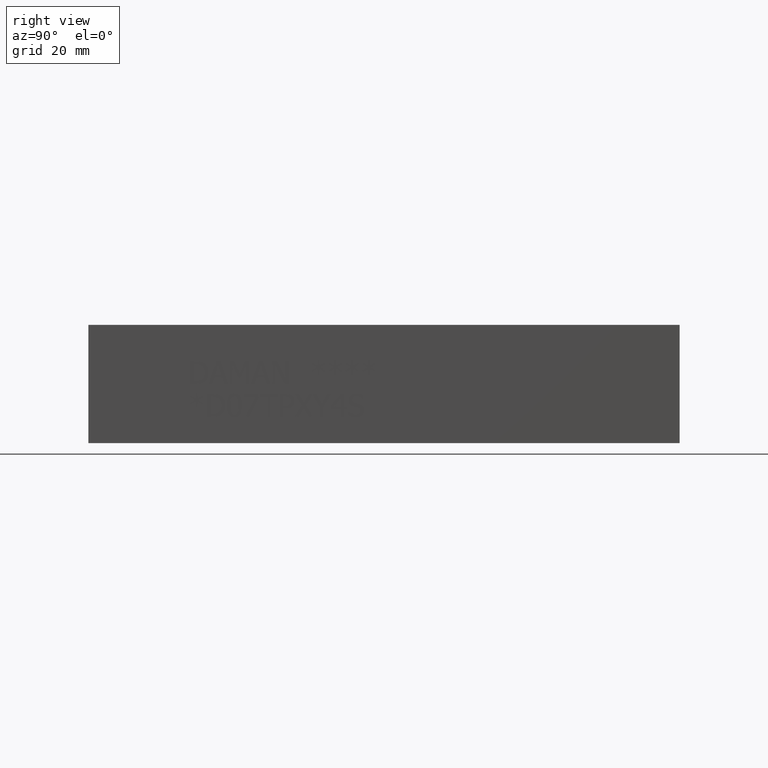
[diagram: clean part render]
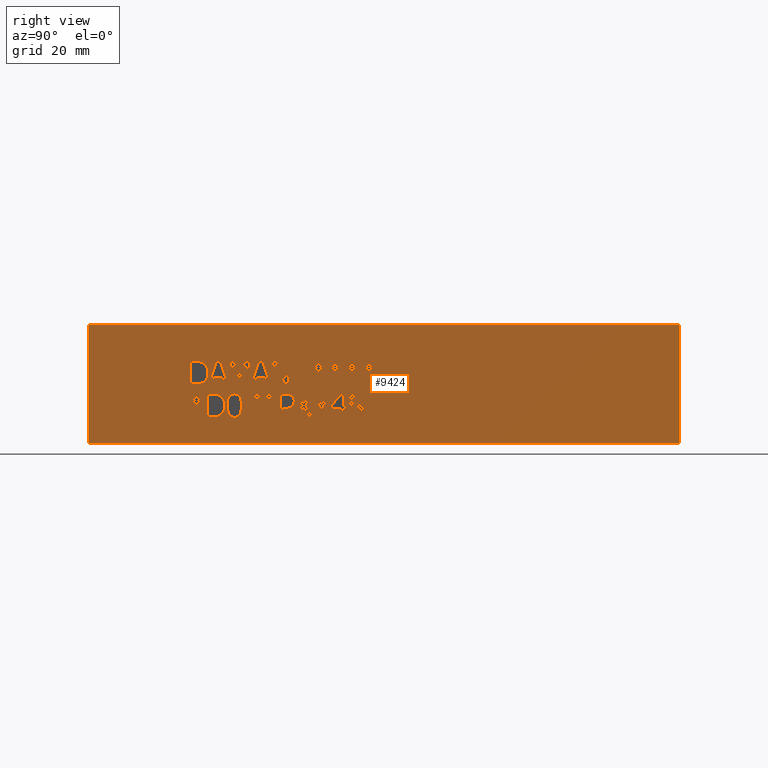
[diagram: same view with one face highlighted and labeled with its STEP entity id]
A machine part, right view. The second image highlights one B-rep face of the part: STEP entity #9424.
In plain terms, the highlighted planar face has unit normal (1, 0, 0).
Its self-contained STEP definition (entity closure, byte-faithful):
#264=FACE_BOUND('',#1379,.T.);
#265=FACE_BOUND('',#1380,.T.);
#266=FACE_BOUND('',#1381,.T.);
#267=FACE_BOUND('',#1382,.T.);
#268=FACE_BOUND('',#1383,.T.);
#269=FACE_BOUND('',#1384,.T.);
#270=FACE_BOUND('',#1385,.T.);
#271=FACE_BOUND('',#1386,.T.);
#272=FACE_BOUND('',#1387,.T.);
#273=FACE_BOUND('',#1388,.T.);
#274=FACE_BOUND('',#1389,.T.);
#275=FACE_BOUND('',#1390,.T.);
#276=FACE_BOUND('',#1391,.T.);
#277=FACE_BOUND('',#1392,.T.);
#278=FACE_BOUND('',#1393,.T.);
#279=FACE_BOUND('',#1394,.T.);
#280=FACE_BOUND('',#1395,.T.);
#281=FACE_BOUND('',#1396,.T.);
#438=B_SPLINE_CURVE_WITH_KNOTS('',2,(#13667,#13668,#13669,#13670),
 .UNSPECIFIED.,.F.,.F.,(3,1,3),(0.,1.,2.),.UNSPECIFIED.);
#440=B_SPLINE_CURVE_WITH_KNOTS('',2,(#13688,#13689,#13690,#13691),
 .UNSPECIFIED.,.F.,.F.,(3,1,3),(0.,1.,2.),.UNSPECIFIED.);
#442=B_SPLINE_CURVE_WITH_KNOTS('',2,(#13725,#13726,#13727,#13728),
 .UNSPECIFIED.,.F.,.F.,(3,1,3),(0.,1.,2.),.UNSPECIFIED.);
#444=B_SPLINE_CURVE_WITH_KNOTS('',2,(#13743,#13744,#13745,#13746),
 .UNSPECIFIED.,.F.,.F.,(3,1,3),(0.,1.,2.),.UNSPECIFIED.);
#462=B_SPLINE_CURVE_WITH_KNOTS('',2,(#13914,#13915,#13916,#13917),
 .UNSPECIFIED.,.F.,.F.,(3,1,3),(0.,1.,2.),.UNSPECIFIED.);
#464=B_SPLINE_CURVE_WITH_KNOTS('',2,(#13935,#13936,#13937,#13938),
 .UNSPECIFIED.,.F.,.F.,(3,1,3),(0.,1.,2.),.UNSPECIFIED.);
#466=B_SPLINE_CURVE_WITH_KNOTS('',2,(#13954,#13955,#13956,#13957),
 .UNSPECIFIED.,.F.,.F.,(3,1,3),(0.,1.,2.),.UNSPECIFIED.);
#468=B_SPLINE_CURVE_WITH_KNOTS('',2,(#13972,#13973,#13974,#13975),
 .UNSPECIFIED.,.F.,.F.,(3,1,3),(0.,1.,2.),.UNSPECIFIED.);
#478=B_SPLINE_CURVE_WITH_KNOTS('',2,(#14128,#14129,#14130,#14131),
 .UNSPECIFIED.,.F.,.F.,(3,1,3),(0.,1.,2.),.UNSPECIFIED.);
#480=B_SPLINE_CURVE_WITH_KNOTS('',2,(#14149,#14150,#14151,#14152),
 .UNSPECIFIED.,.F.,.F.,(3,1,3),(0.,1.,2.),.UNSPECIFIED.);
#482=B_SPLINE_CURVE_WITH_KNOTS('',2,(#14198,#14199,#14200,#14201),
 .UNSPECIFIED.,.F.,.F.,(3,1,3),(0.,1.,2.),.UNSPECIFIED.);
#484=B_SPLINE_CURVE_WITH_KNOTS('',2,(#14216,#14217,#14218,#14219),
 .UNSPECIFIED.,.F.,.F.,(3,1,3),(0.,1.,2.),.UNSPECIFIED.);
#486=B_SPLINE_CURVE_WITH_KNOTS('',2,(#14441,#14442,#14443,#14444),
 .UNSPECIFIED.,.F.,.F.,(3,1,3),(0.,1.,2.),.UNSPECIFIED.);
#488=B_SPLINE_CURVE_WITH_KNOTS('',2,(#14462,#14463,#14464,#14465),
 .UNSPECIFIED.,.F.,.F.,(3,1,3),(0.,1.,2.),.UNSPECIFIED.);
#490=B_SPLINE_CURVE_WITH_KNOTS('',2,(#14481,#14482,#14483,#14484),
 .UNSPECIFIED.,.F.,.F.,(3,1,3),(0.,1.,2.),.UNSPECIFIED.);
#492=B_SPLINE_CURVE_WITH_KNOTS('',2,(#14500,#14501,#14502,#14503),
 .UNSPECIFIED.,.F.,.F.,(3,1,3),(0.,1.,2.),.UNSPECIFIED.);
#494=B_SPLINE_CURVE_WITH_KNOTS('',2,(#14519,#14520,#14521,#14522),
 .UNSPECIFIED.,.F.,.F.,(3,1,3),(0.,1.,2.),.UNSPECIFIED.);
#496=B_SPLINE_CURVE_WITH_KNOTS('',2,(#14538,#14539,#14540,#14541),
 .UNSPECIFIED.,.F.,.F.,(3,1,3),(0.,1.,2.),.UNSPECIFIED.);
#498=B_SPLINE_CURVE_WITH_KNOTS('',2,(#14557,#14558,#14559,#14560),
 .UNSPECIFIED.,.F.,.F.,(3,1,3),(0.,1.,2.),.UNSPECIFIED.);
#500=B_SPLINE_CURVE_WITH_KNOTS('',2,(#14588,#14589,#14590,#14591),
 .UNSPECIFIED.,.F.,.F.,(3,1,3),(0.,1.,2.),.UNSPECIFIED.);
#502=B_SPLINE_CURVE_WITH_KNOTS('',2,(#14607,#14608,#14609,#14610),
 .UNSPECIFIED.,.F.,.F.,(3,1,3),(0.,1.,2.),.UNSPECIFIED.);
#504=B_SPLINE_CURVE_WITH_KNOTS('',2,(#14626,#14627,#14628,#14629),
 .UNSPECIFIED.,.F.,.F.,(3,1,3),(0.,1.,2.),.UNSPECIFIED.);
#506=B_SPLINE_CURVE_WITH_KNOTS('',2,(#14645,#14646,#14647,#14648),
 .UNSPECIFIED.,.F.,.F.,(3,1,3),(0.,1.,2.),.UNSPECIFIED.);
#508=B_SPLINE_CURVE_WITH_KNOTS('',2,(#14664,#14665,#14666,#14667),
 .UNSPECIFIED.,.F.,.F.,(3,1,3),(0.,1.,2.),.UNSPECIFIED.);
#510=B_SPLINE_CURVE_WITH_KNOTS('',2,(#14683,#14684,#14685,#14686),
 .UNSPECIFIED.,.F.,.F.,(3,1,3),(0.,1.,2.),.UNSPECIFIED.);
#512=B_SPLINE_CURVE_WITH_KNOTS('',2,(#14702,#14703,#14704,#14705),
 .UNSPECIFIED.,.F.,.F.,(3,1,3),(0.,1.,2.),.UNSPECIFIED.);
#514=B_SPLINE_CURVE_WITH_KNOTS('',2,(#14721,#14722,#14723,#14724),
 .UNSPECIFIED.,.F.,.F.,(3,1,3),(0.,1.,2.),.UNSPECIFIED.);
#516=B_SPLINE_CURVE_WITH_KNOTS('',2,(#14751,#14752,#14753,#14754),
 .UNSPECIFIED.,.F.,.F.,(3,1,3),(0.,1.,2.),.UNSPECIFIED.);
#518=B_SPLINE_CURVE_WITH_KNOTS('',2,(#14879,#14880,#14881,#14882),
 .UNSPECIFIED.,.F.,.F.,(3,1,3),(0.,1.,2.),.UNSPECIFIED.);
#519=B_SPLINE_CURVE_WITH_KNOTS('',2,(#14884,#14885,#14886,#14887),
 .UNSPECIFIED.,.F.,.F.,(3,1,3),(0.,1.,2.),.UNSPECIFIED.);
#520=B_SPLINE_CURVE_WITH_KNOTS('',2,(#14889,#14890,#14891,#14892),
 .UNSPECIFIED.,.F.,.F.,(3,1,3),(0.,1.,2.),.UNSPECIFIED.);
#521=B_SPLINE_CURVE_WITH_KNOTS('',2,(#14899,#14900,#14901,#14902),
 .UNSPECIFIED.,.F.,.F.,(3,1,3),(0.,1.,2.),.UNSPECIFIED.);
#896=FACE_OUTER_BOUND('',#1378,.T.);
#1378=EDGE_LOOP('',(#6921,#6922,#6923,#6924));
#1379=EDGE_LOOP('',(#6925,#6926,#6927,#6928,#6929,#6930,#6931,#6932));
#1380=EDGE_LOOP('',(#6933,#6934,#6935,#6936,#6937,#6938,#6939,#6940,#6941,
#6942,#6943,#6944,#6945,#6946,#6947,#6948,#6949,#6950));
#1381=EDGE_LOOP('',(#6951,#6952,#6953,#6954,#6955,#6956,#6957));
#1382=EDGE_LOOP('',(#6958,#6959,#6960,#6961));
#1383=EDGE_LOOP('',(#6962,#6963,#6964,#6965,#6966,#6967,#6968));
#1384=EDGE_LOOP('',(#6969,#6970,#6971,#6972,#6973,#6974,#6975,#6976,#6977));
#1385=EDGE_LOOP('',(#6978,#6979,#6980,#6981,#6982,#6983,#6984,#6985,#6986,
#6987,#6988,#6989,#6990,#6991,#6992,#6993,#6994,#6995,#6996,#6997));
#1386=EDGE_LOOP('',(#6998,#6999,#7000,#7001,#7002,#7003,#7004,#7005,#7006,
#7007,#7008));
#1387=EDGE_LOOP('',(#7009,#7010,#7011,#7012,#7013,#7014,#7015,#7016,#7017,
#7018,#7019,#7020,#7021,#7022,#7023,#7024,#7025,#7026,#7027,#7028));
#1388=EDGE_LOOP('',(#7029,#7030,#7031,#7032,#7033,#7034,#7035,#7036,#7037,
#7038,#7039,#7040,#7041,#7042,#7043,#7044,#7045,#7046));
#1389=EDGE_LOOP('',(#7047,#7048,#7049,#7050,#7051,#7052,#7053,#7054,#7055,
#7056,#7057,#7058,#7059,#7060,#7061,#7062,#7063,#7064));
#1390=EDGE_LOOP('',(#7065,#7066,#7067,#7068,#7069,#7070,#7071,#7072,#7073,
#7074));
#1391=EDGE_LOOP('',(#7075,#7076,#7077,#7078,#7079,#7080,#7081,#7082));
#1392=EDGE_LOOP('',(#7083,#7084,#7085,#7086,#7087,#7088,#7089));
#1393=EDGE_LOOP('',(#7090,#7091,#7092,#7093,#7094,#7095,#7096,#7097));
#1394=EDGE_LOOP('',(#7098,#7099,#7100,#7101,#7102,#7103,#7104,#7105,#7106,
#7107,#7108,#7109,#7110));
#1395=EDGE_LOOP('',(#7111,#7112,#7113,#7114,#7115,#7116,#7117,#7118,#7119,
#7120,#7121,#7122,#7123,#7124,#7125,#7126,#7127,#7128));
#1396=EDGE_LOOP('',(#7129,#7130,#7131,#7132,#7133,#7134,#7135,#7136,#7137,
#7138,#7139,#7140,#7141,#7142,#7143,#7144,#7145,#7146));
#1880=LINE('',#13408,#2819);
#1884=LINE('',#13416,#2823);
#1887=LINE('',#13422,#2826);
#1890=LINE('',#13428,#2829);
#1893=LINE('',#13434,#2832);
#1896=LINE('',#13440,#2835);
#1899=LINE('',#13446,#2838);
#1902=LINE('',#13451,#2841);
#1904=LINE('',#13457,#2843);
#1908=LINE('',#13465,#2847);
#1911=LINE('',#13471,#2850);
#1914=LINE('',#13477,#2853);
#1917=LINE('',#13483,#2856);
#1920=LINE('',#13489,#2859);
#1923=LINE('',#13495,#2862);
#1926=LINE('',#13501,#2865);
#1929=LINE('',#13507,#2868);
#1932=LINE('',#13513,#2871);
#1935=LINE('',#13519,#2874);
#1938=LINE('',#13525,#2877);
#1941=LINE('',#13531,#2880);
#1944=LINE('',#13537,#2883);
#1947=LINE('',#13543,#2886);
#1950=LINE('',#13549,#2889);
#1953=LINE('',#13555,#2892);
#1956=LINE('',#13560,#2895);
#1974=LINE('',#13700,#2913);
#1977=LINE('',#13706,#2916);
#1980=LINE('',#13712,#2919);
#1996=LINE('',#13984,#2935);
#2000=LINE('',#13992,#2939);
#2003=LINE('',#13998,#2942);
#2006=LINE('',#14004,#2945);
#2009=LINE('',#14010,#2948);
#2012=LINE('',#14016,#2951);
#2015=LINE('',#14021,#2954);
#2033=LINE('',#14161,#2972);
#2036=LINE('',#14167,#2975);
#2039=LINE('',#14173,#2978);
#2042=LINE('',#14179,#2981);
#2045=LINE('',#14185,#2984);
#2050=LINE('',#14230,#2989);
#2053=LINE('',#14237,#2992);
#2057=LINE('',#14245,#2996);
#2060=LINE('',#14251,#2999);
#2063=LINE('',#14257,#3002);
#2066=LINE('',#14263,#3005);
#2069=LINE('',#14269,#3008);
#2072=LINE('',#14274,#3011);
#2075=LINE('',#14280,#3014);
#2088=LINE('',#14307,#3027);
#2091=LINE('',#14311,#3030);
#2092=LINE('',#14314,#3031);
#2094=LINE('',#14318,#3033);
#2096=LINE('',#14322,#3035);
#2098=LINE('',#14326,#3037);
#2100=LINE('',#14330,#3039);
#2102=LINE('',#14334,#3041);
#2104=LINE('',#14338,#3043);
#2106=LINE('',#14342,#3045);
#2108=LINE('',#14345,#3047);
#2118=LINE('',#14367,#3057);
#2122=LINE('',#14375,#3061);
#2125=LINE('',#14381,#3064);
#2128=LINE('',#14387,#3067);
#2131=LINE('',#14393,#3070);
#2134=LINE('',#14399,#3073);
#2137=LINE('',#14405,#3076);
#2140=LINE('',#14411,#3079);
#2143=LINE('',#14417,#3082);
#2146=LINE('',#14423,#3085);
#2149=LINE('',#14428,#3088);
#2159=LINE('',#14569,#3098);
#2162=LINE('',#14575,#3101);
#2173=LINE('',#14733,#3112);
#2176=LINE('',#14739,#3115);
#2179=LINE('',#14763,#3118);
#2180=LINE('',#14765,#3119);
#2181=LINE('',#14767,#3120);
#2182=LINE('',#14768,#3121);
#2183=LINE('',#14771,#3122);
#2184=LINE('',#14773,#3123);
#2185=LINE('',#14775,#3124);
#2186=LINE('',#14777,#3125);
#2187=LINE('',#14779,#3126);
#2188=LINE('',#14781,#3127);
#2189=LINE('',#14783,#3128);
#2190=LINE('',#14785,#3129);
#2191=LINE('',#14787,#3130);
#2192=LINE('',#14789,#3131);
#2193=LINE('',#14791,#3132);
#2194=LINE('',#14793,#3133);
#2195=LINE('',#14795,#3134);
#2196=LINE('',#14797,#3135);
#2197=LINE('',#14799,#3136);
#2198=LINE('',#14801,#3137);
#2199=LINE('',#14803,#3138);
#2200=LINE('',#14804,#3139);
#2201=LINE('',#14807,#3140);
#2202=LINE('',#14809,#3141);
#2203=LINE('',#14811,#3142);
#2204=LINE('',#14813,#3143);
#2205=LINE('',#14815,#3144);
#2206=LINE('',#14817,#3145);
#2207=LINE('',#14819,#3146);
#2208=LINE('',#14821,#3147);
#2209=LINE('',#14823,#3148);
#2210=LINE('',#14825,#3149);
#2211=LINE('',#14827,#3150);
#2212=LINE('',#14829,#3151);
#2213=LINE('',#14831,#3152);
#2214=LINE('',#14833,#3153);
#2215=LINE('',#14835,#3154);
#2216=LINE('',#14837,#3155);
#2217=LINE('',#14839,#3156);
#2218=LINE('',#14840,#3157);
#2219=LINE('',#14843,#3158);
#2220=LINE('',#14845,#3159);
#2221=LINE('',#14847,#3160);
#2222=LINE('',#14849,#3161);
#2223=LINE('',#14851,#3162);
#2224=LINE('',#14853,#3163);
#2225=LINE('',#14855,#3164);
#2226=LINE('',#14857,#3165);
#2227=LINE('',#14859,#3166);
#2228=LINE('',#14860,#3167);
#2229=LINE('',#14863,#3168);
#2230=LINE('',#14865,#3169);
#2231=LINE('',#14867,#3170);
#2232=LINE('',#14869,#3171);
#2233=LINE('',#14871,#3172);
#2234=LINE('',#14873,#3173);
#2235=LINE('',#14875,#3174);
#2236=LINE('',#14876,#3175);
#2237=LINE('',#14894,#3176);
#2238=LINE('',#14896,#3177);
#2239=LINE('',#14898,#3178);
#2240=LINE('',#14905,#3179);
#2241=LINE('',#14907,#3180);
#2242=LINE('',#14909,#3181);
#2243=LINE('',#14911,#3182);
#2244=LINE('',#14913,#3183);
#2245=LINE('',#14915,#3184);
#2246=LINE('',#14917,#3185);
#2247=LINE('',#14918,#3186);
#2248=LINE('',#14921,#3187);
#2249=LINE('',#14923,#3188);
#2250=LINE('',#14925,#3189);
#2251=LINE('',#14927,#3190);
#2252=LINE('',#14929,#3191);
#2253=LINE('',#14931,#3192);
#2254=LINE('',#14933,#3193);
#2255=LINE('',#14935,#3194);
#2256=LINE('',#14937,#3195);
#2257=LINE('',#14939,#3196);
#2258=LINE('',#14941,#3197);
#2259=LINE('',#14943,#3198);
#2260=LINE('',#14944,#3199);
#2261=LINE('',#14947,#3200);
#2262=LINE('',#14949,#3201);
#2263=LINE('',#14951,#3202);
#2264=LINE('',#14953,#3203);
#2265=LINE('',#14955,#3204);
#2266=LINE('',#14957,#3205);
#2267=LINE('',#14959,#3206);
#2268=LINE('',#14961,#3207);
#2269=LINE('',#14963,#3208);
#2270=LINE('',#14965,#3209);
#2271=LINE('',#14967,#3210);
#2272=LINE('',#14969,#3211);
#2273=LINE('',#14971,#3212);
#2274=LINE('',#14973,#3213);
#2275=LINE('',#14975,#3214);
#2276=LINE('',#14977,#3215);
#2277=LINE('',#14979,#3216);
#2278=LINE('',#14980,#3217);
#2279=LINE('',#14983,#3218);
#2280=LINE('',#14985,#3219);
#2281=LINE('',#14987,#3220);
#2282=LINE('',#14989,#3221);
#2283=LINE('',#14991,#3222);
#2284=LINE('',#14993,#3223);
#2285=LINE('',#14995,#3224);
#2286=LINE('',#14997,#3225);
#2287=LINE('',#14999,#3226);
#2288=LINE('',#15001,#3227);
#2289=LINE('',#15003,#3228);
#2290=LINE('',#15005,#3229);
#2291=LINE('',#15007,#3230);
#2292=LINE('',#15009,#3231);
#2293=LINE('',#15011,#3232);
#2294=LINE('',#15013,#3233);
#2295=LINE('',#15015,#3234);
#2296=LINE('',#15016,#3235);
#2819=VECTOR('',#10524,10.);
#2823=VECTOR('',#10530,10.);
#2826=VECTOR('',#10535,10.);
#2829=VECTOR('',#10540,10.);
#2832=VECTOR('',#10545,10.);
#2835=VECTOR('',#10550,10.);
#2838=VECTOR('',#10555,10.);
#2841=VECTOR('',#10560,10.);
#2843=VECTOR('',#10566,10.);
#2847=VECTOR('',#10572,10.);
#2850=VECTOR('',#10577,10.);
#2853=VECTOR('',#10582,10.);
#2856=VECTOR('',#10587,10.);
#2859=VECTOR('',#10592,10.);
#2862=VECTOR('',#10597,10.);
#2865=VECTOR('',#10602,10.);
#2868=VECTOR('',#10607,10.);
#2871=VECTOR('',#10612,10.);
#2874=VECTOR('',#10617,10.);
#2877=VECTOR('',#10622,10.);
#2880=VECTOR('',#10627,10.);
#2883=VECTOR('',#10632,10.);
#2886=VECTOR('',#10637,10.);
#2889=VECTOR('',#10642,10.);
#2892=VECTOR('',#10647,10.);
#2895=VECTOR('',#10652,10.);
#2913=VECTOR('',#10680,10.);
#2916=VECTOR('',#10685,10.);
#2919=VECTOR('',#10690,10.);
#2935=VECTOR('',#10712,10.);
#2939=VECTOR('',#10718,10.);
#2942=VECTOR('',#10723,10.);
#2945=VECTOR('',#10728,10.);
#2948=VECTOR('',#10733,10.);
#2951=VECTOR('',#10738,10.);
#2954=VECTOR('',#10743,10.);
#2972=VECTOR('',#10771,10.);
#2975=VECTOR('',#10776,10.);
#2978=VECTOR('',#10781,10.);
#2981=VECTOR('',#10786,10.);
#2984=VECTOR('',#10791,10.);
#2989=VECTOR('',#10800,10.);
#2992=VECTOR('',#10805,10.);
#2996=VECTOR('',#10811,10.);
#2999=VECTOR('',#10816,10.);
#3002=VECTOR('',#10821,10.);
#3005=VECTOR('',#10826,10.);
#3008=VECTOR('',#10831,10.);
#3011=VECTOR('',#10836,10.);
#3014=VECTOR('',#10841,10.);
#3027=VECTOR('',#10858,10.);
#3030=VECTOR('',#10863,10.);
#3031=VECTOR('',#10866,10.);
#3033=VECTOR('',#10870,10.);
#3035=VECTOR('',#10874,10.);
#3037=VECTOR('',#10878,10.);
#3039=VECTOR('',#10882,10.);
#3041=VECTOR('',#10886,10.);
#3043=VECTOR('',#10890,10.);
#3045=VECTOR('',#10894,10.);
#3047=VECTOR('',#10898,10.);
#3057=VECTOR('',#10916,10.);
#3061=VECTOR('',#10922,10.);
#3064=VECTOR('',#10927,10.);
#3067=VECTOR('',#10932,10.);
#3070=VECTOR('',#10937,10.);
#3073=VECTOR('',#10942,10.);
#3076=VECTOR('',#10947,10.);
#3079=VECTOR('',#10952,10.);
#3082=VECTOR('',#10957,10.);
#3085=VECTOR('',#10962,10.);
#3088=VECTOR('',#10967,10.);
#3098=VECTOR('',#10981,10.);
#3101=VECTOR('',#10986,10.);
#3112=VECTOR('',#10999,10.);
#3115=VECTOR('',#11004,10.);
#3118=VECTOR('',#11011,10.);
#3119=VECTOR('',#11012,10.);
#3120=VECTOR('',#11013,10.);
#3121=VECTOR('',#11014,10.);
#3122=VECTOR('',#11015,10.);
#3123=VECTOR('',#11016,10.);
#3124=VECTOR('',#11017,10.);
#3125=VECTOR('',#11018,10.);
#3126=VECTOR('',#11019,10.);
#3127=VECTOR('',#11020,10.);
#3128=VECTOR('',#11021,10.);
#3129=VECTOR('',#11022,10.);
#3130=VECTOR('',#11023,10.);
#3131=VECTOR('',#11024,10.);
#3132=VECTOR('',#11025,10.);
#3133=VECTOR('',#11026,10.);
#3134=VECTOR('',#11027,10.);
#3135=VECTOR('',#11028,10.);
#3136=VECTOR('',#11029,10.);
#3137=VECTOR('',#11030,10.);
#3138=VECTOR('',#11031,10.);
#3139=VECTOR('',#11032,10.);
#3140=VECTOR('',#11033,10.);
#3141=VECTOR('',#11034,10.);
#3142=VECTOR('',#11035,10.);
#3143=VECTOR('',#11036,10.);
#3144=VECTOR('',#11037,10.);
#3145=VECTOR('',#11038,10.);
#3146=VECTOR('',#11039,10.);
#3147=VECTOR('',#11040,10.);
#3148=VECTOR('',#11041,10.);
#3149=VECTOR('',#11042,10.);
#3150=VECTOR('',#11043,10.);
#3151=VECTOR('',#11044,10.);
#3152=VECTOR('',#11045,10.);
#3153=VECTOR('',#11046,10.);
#3154=VECTOR('',#11047,10.);
#3155=VECTOR('',#11048,10.);
#3156=VECTOR('',#11049,10.);
#3157=VECTOR('',#11050,10.);
#3158=VECTOR('',#11051,10.);
#3159=VECTOR('',#11052,10.);
#3160=VECTOR('',#11053,10.);
#3161=VECTOR('',#11054,10.);
#3162=VECTOR('',#11055,10.);
#3163=VECTOR('',#11056,10.);
#3164=VECTOR('',#11057,10.);
#3165=VECTOR('',#11058,10.);
#3166=VECTOR('',#11059,10.);
#3167=VECTOR('',#11060,10.);
#3168=VECTOR('',#11061,10.);
#3169=VECTOR('',#11062,10.);
#3170=VECTOR('',#11063,10.);
#3171=VECTOR('',#11064,10.);
#3172=VECTOR('',#11065,10.);
#3173=VECTOR('',#11066,10.);
#3174=VECTOR('',#11067,10.);
#3175=VECTOR('',#11068,10.);
#3176=VECTOR('',#11069,10.);
#3177=VECTOR('',#11070,10.);
#3178=VECTOR('',#11071,10.);
#3179=VECTOR('',#11072,10.);
#3180=VECTOR('',#11073,10.);
#3181=VECTOR('',#11074,10.);
#3182=VECTOR('',#11075,10.);
#3183=VECTOR('',#11076,10.);
#3184=VECTOR('',#11077,10.);
#3185=VECTOR('',#11078,10.);
#3186=VECTOR('',#11079,10.);
#3187=VECTOR('',#11080,10.);
#3188=VECTOR('',#11081,10.);
#3189=VECTOR('',#11082,10.);
#3190=VECTOR('',#11083,10.);
#3191=VECTOR('',#11084,10.);
#3192=VECTOR('',#11085,10.);
#3193=VECTOR('',#11086,10.);
#3194=VECTOR('',#11087,10.);
#3195=VECTOR('',#11088,10.);
#3196=VECTOR('',#11089,10.);
#3197=VECTOR('',#11090,10.);
#3198=VECTOR('',#11091,10.);
#3199=VECTOR('',#11092,10.);
#3200=VECTOR('',#11093,10.);
#3201=VECTOR('',#11094,10.);
#3202=VECTOR('',#11095,10.);
#3203=VECTOR('',#11096,10.);
#3204=VECTOR('',#11097,10.);
#3205=VECTOR('',#11098,10.);
#3206=VECTOR('',#11099,10.);
#3207=VECTOR('',#11100,10.);
#3208=VECTOR('',#11101,10.);
#3209=VECTOR('',#11102,10.);
#3210=VECTOR('',#11103,10.);
#3211=VECTOR('',#11104,10.);
#3212=VECTOR('',#11105,10.);
#3213=VECTOR('',#11106,10.);
#3214=VECTOR('',#11107,10.);
#3215=VECTOR('',#11108,10.);
#3216=VECTOR('',#11109,10.);
#3217=VECTOR('',#11110,10.);
#3218=VECTOR('',#11111,10.);
#3219=VECTOR('',#11112,10.);
#3220=VECTOR('',#11113,10.);
#3221=VECTOR('',#11114,10.);
#3222=VECTOR('',#11115,10.);
#3223=VECTOR('',#11116,10.);
#3224=VECTOR('',#11117,10.);
#3225=VECTOR('',#11118,10.);
#3226=VECTOR('',#11119,10.);
#3227=VECTOR('',#11120,10.);
#3228=VECTOR('',#11121,10.);
#3229=VECTOR('',#11122,10.);
#3230=VECTOR('',#11123,10.);
#3231=VECTOR('',#11124,10.);
#3232=VECTOR('',#11125,10.);
#3233=VECTOR('',#11126,10.);
#3234=VECTOR('',#11127,10.);
#3235=VECTOR('',#11128,10.);
#3757=VERTEX_POINT('',#13406);
#3758=VERTEX_POINT('',#13407);
#3761=VERTEX_POINT('',#13415);
#3763=VERTEX_POINT('',#13421);
#3765=VERTEX_POINT('',#13427);
#3767=VERTEX_POINT('',#13433);
#3769=VERTEX_POINT('',#13439);
#3771=VERTEX_POINT('',#13445);
#3773=VERTEX_POINT('',#13455);
#3774=VERTEX_POINT('',#13456);
#3777=VERTEX_POINT('',#13464);
#3779=VERTEX_POINT('',#13470);
#3781=VERTEX_POINT('',#13476);
#3783=VERTEX_POINT('',#13482);
#3785=VERTEX_POINT('',#13488);
#3787=VERTEX_POINT('',#13494);
#3789=VERTEX_POINT('',#13500);
#3791=VERTEX_POINT('',#13506);
#3793=VERTEX_POINT('',#13512);
#3795=VERTEX_POINT('',#13518);
#3797=VERTEX_POINT('',#13524);
#3799=VERTEX_POINT('',#13530);
#3801=VERTEX_POINT('',#13536);
#3803=VERTEX_POINT('',#13542);
#3805=VERTEX_POINT('',#13548);
#3807=VERTEX_POINT('',#13554);
#3823=VERTEX_POINT('',#13665);
#3824=VERTEX_POINT('',#13666);
#3827=VERTEX_POINT('',#13687);
#3829=VERTEX_POINT('',#13699);
#3831=VERTEX_POINT('',#13705);
#3833=VERTEX_POINT('',#13711);
#3835=VERTEX_POINT('',#13724);
#3853=VERTEX_POINT('',#13912);
#3854=VERTEX_POINT('',#13913);
#3857=VERTEX_POINT('',#13934);
#3859=VERTEX_POINT('',#13953);
#3861=VERTEX_POINT('',#13982);
#3862=VERTEX_POINT('',#13983);
#3865=VERTEX_POINT('',#13991);
#3867=VERTEX_POINT('',#13997);
#3869=VERTEX_POINT('',#14003);
#3871=VERTEX_POINT('',#14009);
#3873=VERTEX_POINT('',#14015);
#3889=VERTEX_POINT('',#14126);
#3890=VERTEX_POINT('',#14127);
#3893=VERTEX_POINT('',#14148);
#3895=VERTEX_POINT('',#14160);
#3897=VERTEX_POINT('',#14166);
#3899=VERTEX_POINT('',#14172);
#3901=VERTEX_POINT('',#14178);
#3903=VERTEX_POINT('',#14184);
#3905=VERTEX_POINT('',#14197);
#3908=VERTEX_POINT('',#14227);
#3909=VERTEX_POINT('',#14229);
#3911=VERTEX_POINT('',#14235);
#3912=VERTEX_POINT('',#14236);
#3915=VERTEX_POINT('',#14244);
#3917=VERTEX_POINT('',#14250);
#3919=VERTEX_POINT('',#14256);
#3921=VERTEX_POINT('',#14262);
#3923=VERTEX_POINT('',#14268);
#3926=VERTEX_POINT('',#14279);
#3937=VERTEX_POINT('',#14305);
#3938=VERTEX_POINT('',#14306);
#3939=VERTEX_POINT('',#14313);
#3940=VERTEX_POINT('',#14317);
#3941=VERTEX_POINT('',#14321);
#3942=VERTEX_POINT('',#14325);
#3943=VERTEX_POINT('',#14329);
#3944=VERTEX_POINT('',#14333);
#3945=VERTEX_POINT('',#14337);
#3946=VERTEX_POINT('',#14341);
#3953=VERTEX_POINT('',#14365);
#3954=VERTEX_POINT('',#14366);
#3957=VERTEX_POINT('',#14374);
#3959=VERTEX_POINT('',#14380);
#3961=VERTEX_POINT('',#14386);
#3963=VERTEX_POINT('',#14392);
#3965=VERTEX_POINT('',#14398);
#3967=VERTEX_POINT('',#14404);
#3969=VERTEX_POINT('',#14410);
#3971=VERTEX_POINT('',#14416);
#3973=VERTEX_POINT('',#14422);
#3975=VERTEX_POINT('',#14439);
#3976=VERTEX_POINT('',#14440);
#3979=VERTEX_POINT('',#14461);
#3981=VERTEX_POINT('',#14480);
#3983=VERTEX_POINT('',#14499);
#3985=VERTEX_POINT('',#14518);
#3987=VERTEX_POINT('',#14537);
#3989=VERTEX_POINT('',#14556);
#3991=VERTEX_POINT('',#14568);
#3993=VERTEX_POINT('',#14574);
#3995=VERTEX_POINT('',#14587);
#3997=VERTEX_POINT('',#14606);
#3999=VERTEX_POINT('',#14625);
#4001=VERTEX_POINT('',#14644);
#4003=VERTEX_POINT('',#14663);
#4005=VERTEX_POINT('',#14682);
#4007=VERTEX_POINT('',#14701);
#4009=VERTEX_POINT('',#14720);
#4011=VERTEX_POINT('',#14732);
#4013=VERTEX_POINT('',#14738);
#4015=VERTEX_POINT('',#14761);
#4016=VERTEX_POINT('',#14762);
#4017=VERTEX_POINT('',#14764);
#4018=VERTEX_POINT('',#14766);
#4019=VERTEX_POINT('',#14769);
#4020=VERTEX_POINT('',#14770);
#4021=VERTEX_POINT('',#14772);
#4022=VERTEX_POINT('',#14774);
#4023=VERTEX_POINT('',#14776);
#4024=VERTEX_POINT('',#14778);
#4025=VERTEX_POINT('',#14780);
#4026=VERTEX_POINT('',#14782);
#4027=VERTEX_POINT('',#14784);
#4028=VERTEX_POINT('',#14786);
#4029=VERTEX_POINT('',#14788);
#4030=VERTEX_POINT('',#14790);
#4031=VERTEX_POINT('',#14792);
#4032=VERTEX_POINT('',#14794);
#4033=VERTEX_POINT('',#14796);
#4034=VERTEX_POINT('',#14798);
#4035=VERTEX_POINT('',#14800);
#4036=VERTEX_POINT('',#14802);
#4037=VERTEX_POINT('',#14805);
#4038=VERTEX_POINT('',#14806);
#4039=VERTEX_POINT('',#14808);
#4040=VERTEX_POINT('',#14810);
#4041=VERTEX_POINT('',#14812);
#4042=VERTEX_POINT('',#14814);
#4043=VERTEX_POINT('',#14816);
#4044=VERTEX_POINT('',#14818);
#4045=VERTEX_POINT('',#14820);
#4046=VERTEX_POINT('',#14822);
#4047=VERTEX_POINT('',#14824);
#4048=VERTEX_POINT('',#14826);
#4049=VERTEX_POINT('',#14828);
#4050=VERTEX_POINT('',#14830);
#4051=VERTEX_POINT('',#14832);
#4052=VERTEX_POINT('',#14834);
#4053=VERTEX_POINT('',#14836);
#4054=VERTEX_POINT('',#14838);
#4055=VERTEX_POINT('',#14841);
#4056=VERTEX_POINT('',#14842);
#4057=VERTEX_POINT('',#14844);
#4058=VERTEX_POINT('',#14846);
#4059=VERTEX_POINT('',#14848);
#4060=VERTEX_POINT('',#14850);
#4061=VERTEX_POINT('',#14852);
#4062=VERTEX_POINT('',#14854);
#4063=VERTEX_POINT('',#14856);
#4064=VERTEX_POINT('',#14858);
#4065=VERTEX_POINT('',#14861);
#4066=VERTEX_POINT('',#14862);
#4067=VERTEX_POINT('',#14864);
#4068=VERTEX_POINT('',#14866);
#4069=VERTEX_POINT('',#14868);
#4070=VERTEX_POINT('',#14870);
#4071=VERTEX_POINT('',#14872);
#4072=VERTEX_POINT('',#14874);
#4073=VERTEX_POINT('',#14877);
#4074=VERTEX_POINT('',#14878);
#4075=VERTEX_POINT('',#14883);
#4076=VERTEX_POINT('',#14888);
#4077=VERTEX_POINT('',#14893);
#4078=VERTEX_POINT('',#14895);
#4079=VERTEX_POINT('',#14897);
#4080=VERTEX_POINT('',#14903);
#4081=VERTEX_POINT('',#14904);
#4082=VERTEX_POINT('',#14906);
#4083=VERTEX_POINT('',#14908);
#4084=VERTEX_POINT('',#14910);
#4085=VERTEX_POINT('',#14912);
#4086=VERTEX_POINT('',#14914);
#4087=VERTEX_POINT('',#14916);
#4088=VERTEX_POINT('',#14919);
#4089=VERTEX_POINT('',#14920);
#4090=VERTEX_POINT('',#14922);
#4091=VERTEX_POINT('',#14924);
#4092=VERTEX_POINT('',#14926);
#4093=VERTEX_POINT('',#14928);
#4094=VERTEX_POINT('',#14930);
#4095=VERTEX_POINT('',#14932);
#4096=VERTEX_POINT('',#14934);
#4097=VERTEX_POINT('',#14936);
#4098=VERTEX_POINT('',#14938);
#4099=VERTEX_POINT('',#14940);
#4100=VERTEX_POINT('',#14942);
#4101=VERTEX_POINT('',#14945);
#4102=VERTEX_POINT('',#14946);
#4103=VERTEX_POINT('',#14948);
#4104=VERTEX_POINT('',#14950);
#4105=VERTEX_POINT('',#14952);
#4106=VERTEX_POINT('',#14954);
#4107=VERTEX_POINT('',#14956);
#4108=VERTEX_POINT('',#14958);
#4109=VERTEX_POINT('',#14960);
#4110=VERTEX_POINT('',#14962);
#4111=VERTEX_POINT('',#14964);
#4112=VERTEX_POINT('',#14966);
#4113=VERTEX_POINT('',#14968);
#4114=VERTEX_POINT('',#14970);
#4115=VERTEX_POINT('',#14972);
#4116=VERTEX_POINT('',#14974);
#4117=VERTEX_POINT('',#14976);
#4118=VERTEX_POINT('',#14978);
#4119=VERTEX_POINT('',#14981);
#4120=VERTEX_POINT('',#14982);
#4121=VERTEX_POINT('',#14984);
#4122=VERTEX_POINT('',#14986);
#4123=VERTEX_POINT('',#14988);
#4124=VERTEX_POINT('',#14990);
#4125=VERTEX_POINT('',#14992);
#4126=VERTEX_POINT('',#14994);
#4127=VERTEX_POINT('',#14996);
#4128=VERTEX_POINT('',#14998);
#4129=VERTEX_POINT('',#15000);
#4130=VERTEX_POINT('',#15002);
#4131=VERTEX_POINT('',#15004);
#4132=VERTEX_POINT('',#15006);
#4133=VERTEX_POINT('',#15008);
#4134=VERTEX_POINT('',#15010);
#4135=VERTEX_POINT('',#15012);
#4136=VERTEX_POINT('',#15014);
#4760=EDGE_CURVE('',#3757,#3758,#1880,.T.);
#4764=EDGE_CURVE('',#3761,#3757,#1884,.T.);
#4767=EDGE_CURVE('',#3763,#3761,#1887,.T.);
#4770=EDGE_CURVE('',#3765,#3763,#1890,.T.);
#4773=EDGE_CURVE('',#3767,#3765,#1893,.T.);
#4776=EDGE_CURVE('',#3769,#3767,#1896,.T.);
#4779=EDGE_CURVE('',#3771,#3769,#1899,.T.);
#4782=EDGE_CURVE('',#3758,#3771,#1902,.T.);
#4784=EDGE_CURVE('',#3773,#3774,#1904,.T.);
#4788=EDGE_CURVE('',#3777,#3773,#1908,.T.);
#4791=EDGE_CURVE('',#3779,#3777,#1911,.T.);
#4794=EDGE_CURVE('',#3781,#3779,#1914,.T.);
#4797=EDGE_CURVE('',#3783,#3781,#1917,.T.);
#4800=EDGE_CURVE('',#3785,#3783,#1920,.T.);
#4803=EDGE_CURVE('',#3787,#3785,#1923,.T.);
#4806=EDGE_CURVE('',#3789,#3787,#1926,.T.);
#4809=EDGE_CURVE('',#3791,#3789,#1929,.T.);
#4812=EDGE_CURVE('',#3793,#3791,#1932,.T.);
#4815=EDGE_CURVE('',#3795,#3793,#1935,.T.);
#4818=EDGE_CURVE('',#3797,#3795,#1938,.T.);
#4821=EDGE_CURVE('',#3799,#3797,#1941,.T.);
#4824=EDGE_CURVE('',#3801,#3799,#1944,.T.);
#4827=EDGE_CURVE('',#3803,#3801,#1947,.T.);
#4830=EDGE_CURVE('',#3805,#3803,#1950,.T.);
#4833=EDGE_CURVE('',#3807,#3805,#1953,.T.);
#4836=EDGE_CURVE('',#3774,#3807,#1956,.T.);
#4859=EDGE_CURVE('',#3823,#3824,#438,.T.);
#4863=EDGE_CURVE('',#3827,#3823,#440,.T.);
#4866=EDGE_CURVE('',#3829,#3827,#1974,.T.);
#4869=EDGE_CURVE('',#3831,#3829,#1977,.T.);
#4872=EDGE_CURVE('',#3833,#3831,#1980,.T.);
#4875=EDGE_CURVE('',#3835,#3833,#442,.T.);
#4878=EDGE_CURVE('',#3824,#3835,#444,.T.);
#4904=EDGE_CURVE('',#3853,#3854,#462,.T.);
#4908=EDGE_CURVE('',#3857,#3853,#464,.T.);
#4911=EDGE_CURVE('',#3859,#3857,#466,.T.);
#4914=EDGE_CURVE('',#3854,#3859,#468,.T.);
#4916=EDGE_CURVE('',#3861,#3862,#1996,.T.);
#4920=EDGE_CURVE('',#3865,#3861,#2000,.T.);
#4923=EDGE_CURVE('',#3867,#3865,#2003,.T.);
#4926=EDGE_CURVE('',#3869,#3867,#2006,.T.);
#4929=EDGE_CURVE('',#3871,#3869,#2009,.T.);
#4932=EDGE_CURVE('',#3873,#3871,#2012,.T.);
#4935=EDGE_CURVE('',#3862,#3873,#2015,.T.);
#4958=EDGE_CURVE('',#3889,#3890,#478,.T.);
#4962=EDGE_CURVE('',#3893,#3889,#480,.T.);
#4965=EDGE_CURVE('',#3895,#3893,#2033,.T.);
#4968=EDGE_CURVE('',#3897,#3895,#2036,.T.);
#4971=EDGE_CURVE('',#3899,#3897,#2039,.T.);
#4974=EDGE_CURVE('',#3901,#3899,#2042,.T.);
#4977=EDGE_CURVE('',#3903,#3901,#2045,.T.);
#4980=EDGE_CURVE('',#3905,#3903,#482,.T.);
#4983=EDGE_CURVE('',#3890,#3905,#484,.T.);
#4986=EDGE_CURVE('',#3909,#3908,#2050,.T.);
#4989=EDGE_CURVE('',#3911,#3912,#2053,.T.);
#4993=EDGE_CURVE('',#3915,#3911,#2057,.T.);
#4996=EDGE_CURVE('',#3917,#3915,#2060,.T.);
#4999=EDGE_CURVE('',#3919,#3909,#2063,.T.);
#5002=EDGE_CURVE('',#3921,#3919,#2066,.T.);
#5005=EDGE_CURVE('',#3923,#3921,#2069,.T.);
#5008=EDGE_CURVE('',#3912,#3923,#2072,.T.);
#5011=EDGE_CURVE('',#3926,#3917,#2075,.T.);
#5024=EDGE_CURVE('',#3937,#3938,#2088,.T.);
#5027=EDGE_CURVE('',#3908,#3937,#2091,.T.);
#5028=EDGE_CURVE('',#3939,#3926,#2092,.T.);
#5030=EDGE_CURVE('',#3940,#3939,#2094,.T.);
#5032=EDGE_CURVE('',#3941,#3940,#2096,.T.);
#5034=EDGE_CURVE('',#3942,#3941,#2098,.T.);
#5036=EDGE_CURVE('',#3943,#3942,#2100,.T.);
#5038=EDGE_CURVE('',#3944,#3943,#2102,.T.);
#5040=EDGE_CURVE('',#3945,#3944,#2104,.T.);
#5042=EDGE_CURVE('',#3946,#3945,#2106,.T.);
#5044=EDGE_CURVE('',#3938,#3946,#2108,.T.);
#5054=EDGE_CURVE('',#3953,#3954,#2118,.T.);
#5058=EDGE_CURVE('',#3957,#3953,#2122,.T.);
#5061=EDGE_CURVE('',#3959,#3957,#2125,.T.);
#5064=EDGE_CURVE('',#3961,#3959,#2128,.T.);
#5067=EDGE_CURVE('',#3963,#3961,#2131,.T.);
#5070=EDGE_CURVE('',#3965,#3963,#2134,.T.);
#5073=EDGE_CURVE('',#3967,#3965,#2137,.T.);
#5076=EDGE_CURVE('',#3969,#3967,#2140,.T.);
#5079=EDGE_CURVE('',#3971,#3969,#2143,.T.);
#5082=EDGE_CURVE('',#3973,#3971,#2146,.T.);
#5085=EDGE_CURVE('',#3954,#3973,#2149,.T.);
#5087=EDGE_CURVE('',#3975,#3976,#486,.T.);
#5091=EDGE_CURVE('',#3979,#3975,#488,.T.);
#5094=EDGE_CURVE('',#3981,#3979,#490,.T.);
#5097=EDGE_CURVE('',#3983,#3981,#492,.T.);
#5100=EDGE_CURVE('',#3985,#3983,#494,.T.);
#5103=EDGE_CURVE('',#3987,#3985,#496,.T.);
#5106=EDGE_CURVE('',#3989,#3987,#498,.T.);
#5109=EDGE_CURVE('',#3991,#3989,#2159,.T.);
#5112=EDGE_CURVE('',#3993,#3991,#2162,.T.);
#5115=EDGE_CURVE('',#3995,#3993,#500,.T.);
#5118=EDGE_CURVE('',#3997,#3995,#502,.T.);
#5121=EDGE_CURVE('',#3999,#3997,#504,.T.);
#5124=EDGE_CURVE('',#4001,#3999,#506,.T.);
#5127=EDGE_CURVE('',#4003,#4001,#508,.T.);
#5130=EDGE_CURVE('',#4005,#4003,#510,.T.);
#5133=EDGE_CURVE('',#4007,#4005,#512,.T.);
#5136=EDGE_CURVE('',#4009,#4007,#514,.T.);
#5139=EDGE_CURVE('',#4011,#4009,#2173,.T.);
#5142=EDGE_CURVE('',#4013,#4011,#2176,.T.);
#5145=EDGE_CURVE('',#3976,#4013,#516,.T.);
#5147=EDGE_CURVE('',#4015,#4016,#2179,.T.);
#5148=EDGE_CURVE('',#4016,#4017,#2180,.T.);
#5149=EDGE_CURVE('',#4018,#4017,#2181,.T.);
#5150=EDGE_CURVE('',#4015,#4018,#2182,.T.);
#5151=EDGE_CURVE('',#4019,#4020,#2183,.T.);
#5152=EDGE_CURVE('',#4020,#4021,#2184,.T.);
#5153=EDGE_CURVE('',#4021,#4022,#2185,.T.);
#5154=EDGE_CURVE('',#4022,#4023,#2186,.T.);
#5155=EDGE_CURVE('',#4023,#4024,#2187,.T.);
#5156=EDGE_CURVE('',#4024,#4025,#2188,.T.);
#5157=EDGE_CURVE('',#4025,#4026,#2189,.T.);
#5158=EDGE_CURVE('',#4026,#4027,#2190,.T.);
#5159=EDGE_CURVE('',#4027,#4028,#2191,.T.);
#5160=EDGE_CURVE('',#4028,#4029,#2192,.T.);
#5161=EDGE_CURVE('',#4029,#4030,#2193,.T.);
#5162=EDGE_CURVE('',#4030,#4031,#2194,.T.);
#5163=EDGE_CURVE('',#4031,#4032,#2195,.T.);
#5164=EDGE_CURVE('',#4032,#4033,#2196,.T.);
#5165=EDGE_CURVE('',#4033,#4034,#2197,.T.);
#5166=EDGE_CURVE('',#4034,#4035,#2198,.T.);
#5167=EDGE_CURVE('',#4035,#4036,#2199,.T.);
#5168=EDGE_CURVE('',#4036,#4019,#2200,.T.);
#5169=EDGE_CURVE('',#4037,#4038,#2201,.T.);
#5170=EDGE_CURVE('',#4038,#4039,#2202,.T.);
#5171=EDGE_CURVE('',#4039,#4040,#2203,.T.);
#5172=EDGE_CURVE('',#4040,#4041,#2204,.T.);
#5173=EDGE_CURVE('',#4041,#4042,#2205,.T.);
#5174=EDGE_CURVE('',#4042,#4043,#2206,.T.);
#5175=EDGE_CURVE('',#4043,#4044,#2207,.T.);
#5176=EDGE_CURVE('',#4044,#4045,#2208,.T.);
#5177=EDGE_CURVE('',#4045,#4046,#2209,.T.);
#5178=EDGE_CURVE('',#4046,#4047,#2210,.T.);
#5179=EDGE_CURVE('',#4047,#4048,#2211,.T.);
#5180=EDGE_CURVE('',#4048,#4049,#2212,.T.);
#5181=EDGE_CURVE('',#4049,#4050,#2213,.T.);
#5182=EDGE_CURVE('',#4050,#4051,#2214,.T.);
#5183=EDGE_CURVE('',#4051,#4052,#2215,.T.);
#5184=EDGE_CURVE('',#4052,#4053,#2216,.T.);
#5185=EDGE_CURVE('',#4053,#4054,#2217,.T.);
#5186=EDGE_CURVE('',#4054,#4037,#2218,.T.);
#5187=EDGE_CURVE('',#4055,#4056,#2219,.T.);
#5188=EDGE_CURVE('',#4056,#4057,#2220,.T.);
#5189=EDGE_CURVE('',#4057,#4058,#2221,.T.);
#5190=EDGE_CURVE('',#4058,#4059,#2222,.T.);
#5191=EDGE_CURVE('',#4059,#4060,#2223,.T.);
#5192=EDGE_CURVE('',#4060,#4061,#2224,.T.);
#5193=EDGE_CURVE('',#4061,#4062,#2225,.T.);
#5194=EDGE_CURVE('',#4062,#4063,#2226,.T.);
#5195=EDGE_CURVE('',#4063,#4064,#2227,.T.);
#5196=EDGE_CURVE('',#4064,#4055,#2228,.T.);
#5197=EDGE_CURVE('',#4065,#4066,#2229,.T.);
#5198=EDGE_CURVE('',#4066,#4067,#2230,.T.);
#5199=EDGE_CURVE('',#4067,#4068,#2231,.T.);
#5200=EDGE_CURVE('',#4068,#4069,#2232,.T.);
#5201=EDGE_CURVE('',#4069,#4070,#2233,.T.);
#5202=EDGE_CURVE('',#4070,#4071,#2234,.T.);
#5203=EDGE_CURVE('',#4071,#4072,#2235,.T.);
#5204=EDGE_CURVE('',#4072,#4065,#2236,.T.);
#5205=EDGE_CURVE('',#4073,#4074,#518,.T.);
#5206=EDGE_CURVE('',#4074,#4075,#519,.T.);
#5207=EDGE_CURVE('',#4075,#4076,#520,.T.);
#5208=EDGE_CURVE('',#4076,#4077,#2237,.T.);
#5209=EDGE_CURVE('',#4077,#4078,#2238,.T.);
#5210=EDGE_CURVE('',#4078,#4079,#2239,.T.);
#5211=EDGE_CURVE('',#4079,#4073,#521,.T.);
#5212=EDGE_CURVE('',#4080,#4081,#2240,.T.);
#5213=EDGE_CURVE('',#4081,#4082,#2241,.T.);
#5214=EDGE_CURVE('',#4082,#4083,#2242,.T.);
#5215=EDGE_CURVE('',#4083,#4084,#2243,.T.);
#5216=EDGE_CURVE('',#4084,#4085,#2244,.T.);
#5217=EDGE_CURVE('',#4085,#4086,#2245,.T.);
#5218=EDGE_CURVE('',#4086,#4087,#2246,.T.);
#5219=EDGE_CURVE('',#4087,#4080,#2247,.T.);
#5220=EDGE_CURVE('',#4088,#4089,#2248,.T.);
#5221=EDGE_CURVE('',#4089,#4090,#2249,.T.);
#5222=EDGE_CURVE('',#4090,#4091,#2250,.T.);
#5223=EDGE_CURVE('',#4091,#4092,#2251,.T.);
#5224=EDGE_CURVE('',#4092,#4093,#2252,.T.);
#5225=EDGE_CURVE('',#4093,#4094,#2253,.T.);
#5226=EDGE_CURVE('',#4094,#4095,#2254,.T.);
#5227=EDGE_CURVE('',#4095,#4096,#2255,.T.);
#5228=EDGE_CURVE('',#4096,#4097,#2256,.T.);
#5229=EDGE_CURVE('',#4097,#4098,#2257,.T.);
#5230=EDGE_CURVE('',#4098,#4099,#2258,.T.);
#5231=EDGE_CURVE('',#4099,#4100,#2259,.T.);
#5232=EDGE_CURVE('',#4100,#4088,#2260,.T.);
#5233=EDGE_CURVE('',#4101,#4102,#2261,.T.);
#5234=EDGE_CURVE('',#4102,#4103,#2262,.T.);
#5235=EDGE_CURVE('',#4103,#4104,#2263,.T.);
#5236=EDGE_CURVE('',#4104,#4105,#2264,.T.);
#5237=EDGE_CURVE('',#4105,#4106,#2265,.T.);
#5238=EDGE_CURVE('',#4106,#4107,#2266,.T.);
#5239=EDGE_CURVE('',#4107,#4108,#2267,.T.);
#5240=EDGE_CURVE('',#4108,#4109,#2268,.T.);
#5241=EDGE_CURVE('',#4109,#4110,#2269,.T.);
#5242=EDGE_CURVE('',#4110,#4111,#2270,.T.);
#5243=EDGE_CURVE('',#4111,#4112,#2271,.T.);
#5244=EDGE_CURVE('',#4112,#4113,#2272,.T.);
#5245=EDGE_CURVE('',#4113,#4114,#2273,.T.);
#5246=EDGE_CURVE('',#4114,#4115,#2274,.T.);
#5247=EDGE_CURVE('',#4115,#4116,#2275,.T.);
#5248=EDGE_CURVE('',#4116,#4117,#2276,.T.);
#5249=EDGE_CURVE('',#4117,#4118,#2277,.T.);
#5250=EDGE_CURVE('',#4118,#4101,#2278,.T.);
#5251=EDGE_CURVE('',#4119,#4120,#2279,.T.);
#5252=EDGE_CURVE('',#4120,#4121,#2280,.T.);
#5253=EDGE_CURVE('',#4121,#4122,#2281,.T.);
#5254=EDGE_CURVE('',#4122,#4123,#2282,.T.);
#5255=EDGE_CURVE('',#4123,#4124,#2283,.T.);
#5256=EDGE_CURVE('',#4124,#4125,#2284,.T.);
#5257=EDGE_CURVE('',#4125,#4126,#2285,.T.);
#5258=EDGE_CURVE('',#4126,#4127,#2286,.T.);
#5259=EDGE_CURVE('',#4127,#4128,#2287,.T.);
#5260=EDGE_CURVE('',#4128,#4129,#2288,.T.);
#5261=EDGE_CURVE('',#4129,#4130,#2289,.T.);
#5262=EDGE_CURVE('',#4130,#4131,#2290,.T.);
#5263=EDGE_CURVE('',#4131,#4132,#2291,.T.);
#5264=EDGE_CURVE('',#4132,#4133,#2292,.T.);
#5265=EDGE_CURVE('',#4133,#4134,#2293,.T.);
#5266=EDGE_CURVE('',#4134,#4135,#2294,.T.);
#5267=EDGE_CURVE('',#4135,#4136,#2295,.T.);
#5268=EDGE_CURVE('',#4136,#4119,#2296,.T.);
#6921=ORIENTED_EDGE('',*,*,#5147,.T.);
#6922=ORIENTED_EDGE('',*,*,#5148,.T.);
#6923=ORIENTED_EDGE('',*,*,#5149,.F.);
#6924=ORIENTED_EDGE('',*,*,#5150,.F.);
#6925=ORIENTED_EDGE('',*,*,#4760,.T.);
#6926=ORIENTED_EDGE('',*,*,#4782,.T.);
#6927=ORIENTED_EDGE('',*,*,#4779,.T.);
#6928=ORIENTED_EDGE('',*,*,#4776,.T.);
#6929=ORIENTED_EDGE('',*,*,#4773,.T.);
#6930=ORIENTED_EDGE('',*,*,#4770,.T.);
#6931=ORIENTED_EDGE('',*,*,#4767,.T.);
#6932=ORIENTED_EDGE('',*,*,#4764,.T.);
#6933=ORIENTED_EDGE('',*,*,#4784,.T.);
#6934=ORIENTED_EDGE('',*,*,#4836,.T.);
#6935=ORIENTED_EDGE('',*,*,#4833,.T.);
#6936=ORIENTED_EDGE('',*,*,#4830,.T.);
#6937=ORIENTED_EDGE('',*,*,#4827,.T.);
#6938=ORIENTED_EDGE('',*,*,#4824,.T.);
#6939=ORIENTED_EDGE('',*,*,#4821,.T.);
#6940=ORIENTED_EDGE('',*,*,#4818,.T.);
#6941=ORIENTED_EDGE('',*,*,#4815,.T.);
#6942=ORIENTED_EDGE('',*,*,#4812,.T.);
#6943=ORIENTED_EDGE('',*,*,#4809,.T.);
#6944=ORIENTED_EDGE('',*,*,#4806,.T.);
#6945=ORIENTED_EDGE('',*,*,#4803,.T.);
#6946=ORIENTED_EDGE('',*,*,#4800,.T.);
#6947=ORIENTED_EDGE('',*,*,#4797,.T.);
#6948=ORIENTED_EDGE('',*,*,#4794,.T.);
#6949=ORIENTED_EDGE('',*,*,#4791,.T.);
#6950=ORIENTED_EDGE('',*,*,#4788,.T.);
#6951=ORIENTED_EDGE('',*,*,#4859,.T.);
#6952=ORIENTED_EDGE('',*,*,#4878,.T.);
#6953=ORIENTED_EDGE('',*,*,#4875,.T.);
#6954=ORIENTED_EDGE('',*,*,#4872,.T.);
#6955=ORIENTED_EDGE('',*,*,#4869,.T.);
#6956=ORIENTED_EDGE('',*,*,#4866,.T.);
#6957=ORIENTED_EDGE('',*,*,#4863,.T.);
#6958=ORIENTED_EDGE('',*,*,#4904,.T.);
#6959=ORIENTED_EDGE('',*,*,#4914,.T.);
#6960=ORIENTED_EDGE('',*,*,#4911,.T.);
#6961=ORIENTED_EDGE('',*,*,#4908,.T.);
#6962=ORIENTED_EDGE('',*,*,#4916,.T.);
#6963=ORIENTED_EDGE('',*,*,#4935,.T.);
#6964=ORIENTED_EDGE('',*,*,#4932,.T.);
#6965=ORIENTED_EDGE('',*,*,#4929,.T.);
#6966=ORIENTED_EDGE('',*,*,#4926,.T.);
#6967=ORIENTED_EDGE('',*,*,#4923,.T.);
#6968=ORIENTED_EDGE('',*,*,#4920,.T.);
#6969=ORIENTED_EDGE('',*,*,#4958,.T.);
#6970=ORIENTED_EDGE('',*,*,#4983,.T.);
#6971=ORIENTED_EDGE('',*,*,#4980,.T.);
#6972=ORIENTED_EDGE('',*,*,#4977,.T.);
#6973=ORIENTED_EDGE('',*,*,#4974,.T.);
#6974=ORIENTED_EDGE('',*,*,#4971,.T.);
#6975=ORIENTED_EDGE('',*,*,#4968,.T.);
#6976=ORIENTED_EDGE('',*,*,#4965,.T.);
#6977=ORIENTED_EDGE('',*,*,#4962,.T.);
#6978=ORIENTED_EDGE('',*,*,#5024,.T.);
#6979=ORIENTED_EDGE('',*,*,#5044,.T.);
#6980=ORIENTED_EDGE('',*,*,#5042,.T.);
#6981=ORIENTED_EDGE('',*,*,#5040,.T.);
#6982=ORIENTED_EDGE('',*,*,#5038,.T.);
#6983=ORIENTED_EDGE('',*,*,#5036,.T.);
#6984=ORIENTED_EDGE('',*,*,#5034,.T.);
#6985=ORIENTED_EDGE('',*,*,#5032,.T.);
#6986=ORIENTED_EDGE('',*,*,#5030,.T.);
#6987=ORIENTED_EDGE('',*,*,#5028,.T.);
#6988=ORIENTED_EDGE('',*,*,#5011,.T.);
#6989=ORIENTED_EDGE('',*,*,#4996,.T.);
#6990=ORIENTED_EDGE('',*,*,#4993,.T.);
#6991=ORIENTED_EDGE('',*,*,#4989,.T.);
#6992=ORIENTED_EDGE('',*,*,#5008,.T.);
#6993=ORIENTED_EDGE('',*,*,#5005,.T.);
#6994=ORIENTED_EDGE('',*,*,#5002,.T.);
#6995=ORIENTED_EDGE('',*,*,#4999,.T.);
#6996=ORIENTED_EDGE('',*,*,#4986,.T.);
#6997=ORIENTED_EDGE('',*,*,#5027,.T.);
#6998=ORIENTED_EDGE('',*,*,#5054,.T.);
#6999=ORIENTED_EDGE('',*,*,#5085,.T.);
#7000=ORIENTED_EDGE('',*,*,#5082,.T.);
#7001=ORIENTED_EDGE('',*,*,#5079,.T.);
#7002=ORIENTED_EDGE('',*,*,#5076,.T.);
#7003=ORIENTED_EDGE('',*,*,#5073,.T.);
#7004=ORIENTED_EDGE('',*,*,#5070,.T.);
#7005=ORIENTED_EDGE('',*,*,#5067,.T.);
#7006=ORIENTED_EDGE('',*,*,#5064,.T.);
#7007=ORIENTED_EDGE('',*,*,#5061,.T.);
#7008=ORIENTED_EDGE('',*,*,#5058,.T.);
#7009=ORIENTED_EDGE('',*,*,#5087,.T.);
#7010=ORIENTED_EDGE('',*,*,#5145,.T.);
#7011=ORIENTED_EDGE('',*,*,#5142,.T.);
#7012=ORIENTED_EDGE('',*,*,#5139,.T.);
#7013=ORIENTED_EDGE('',*,*,#5136,.T.);
#7014=ORIENTED_EDGE('',*,*,#5133,.T.);
#7015=ORIENTED_EDGE('',*,*,#5130,.T.);
#7016=ORIENTED_EDGE('',*,*,#5127,.T.);
#7017=ORIENTED_EDGE('',*,*,#5124,.T.);
#7018=ORIENTED_EDGE('',*,*,#5121,.T.);
#7019=ORIENTED_EDGE('',*,*,#5118,.T.);
#7020=ORIENTED_EDGE('',*,*,#5115,.T.);
#7021=ORIENTED_EDGE('',*,*,#5112,.T.);
#7022=ORIENTED_EDGE('',*,*,#5109,.T.);
#7023=ORIENTED_EDGE('',*,*,#5106,.T.);
#7024=ORIENTED_EDGE('',*,*,#5103,.T.);
#7025=ORIENTED_EDGE('',*,*,#5100,.T.);
#7026=ORIENTED_EDGE('',*,*,#5097,.T.);
#7027=ORIENTED_EDGE('',*,*,#5094,.T.);
#7028=ORIENTED_EDGE('',*,*,#5091,.T.);
#7029=ORIENTED_EDGE('',*,*,#5151,.T.);
#7030=ORIENTED_EDGE('',*,*,#5152,.T.);
#7031=ORIENTED_EDGE('',*,*,#5153,.T.);
#7032=ORIENTED_EDGE('',*,*,#5154,.T.);
#7033=ORIENTED_EDGE('',*,*,#5155,.T.);
#7034=ORIENTED_EDGE('',*,*,#5156,.T.);
#7035=ORIENTED_EDGE('',*,*,#5157,.T.);
#7036=ORIENTED_EDGE('',*,*,#5158,.T.);
#7037=ORIENTED_EDGE('',*,*,#5159,.T.);
#7038=ORIENTED_EDGE('',*,*,#5160,.T.);
#7039=ORIENTED_EDGE('',*,*,#5161,.T.);
#7040=ORIENTED_EDGE('',*,*,#5162,.T.);
#7041=ORIENTED_EDGE('',*,*,#5163,.T.);
#7042=ORIENTED_EDGE('',*,*,#5164,.T.);
#7043=ORIENTED_EDGE('',*,*,#5165,.T.);
#7044=ORIENTED_EDGE('',*,*,#5166,.T.);
#7045=ORIENTED_EDGE('',*,*,#5167,.T.);
#7046=ORIENTED_EDGE('',*,*,#5168,.T.);
#7047=ORIENTED_EDGE('',*,*,#5169,.T.);
#7048=ORIENTED_EDGE('',*,*,#5170,.T.);
#7049=ORIENTED_EDGE('',*,*,#5171,.T.);
#7050=ORIENTED_EDGE('',*,*,#5172,.T.);
#7051=ORIENTED_EDGE('',*,*,#5173,.T.);
#7052=ORIENTED_EDGE('',*,*,#5174,.T.);
#7053=ORIENTED_EDGE('',*,*,#5175,.T.);
#7054=ORIENTED_EDGE('',*,*,#5176,.T.);
#7055=ORIENTED_EDGE('',*,*,#5177,.T.);
#7056=ORIENTED_EDGE('',*,*,#5178,.T.);
#7057=ORIENTED_EDGE('',*,*,#5179,.T.);
#7058=ORIENTED_EDGE('',*,*,#5180,.T.);
#7059=ORIENTED_EDGE('',*,*,#5181,.T.);
#7060=ORIENTED_EDGE('',*,*,#5182,.T.);
#7061=ORIENTED_EDGE('',*,*,#5183,.T.);
#7062=ORIENTED_EDGE('',*,*,#5184,.T.);
#7063=ORIENTED_EDGE('',*,*,#5185,.T.);
#7064=ORIENTED_EDGE('',*,*,#5186,.T.);
#7065=ORIENTED_EDGE('',*,*,#5187,.T.);
#7066=ORIENTED_EDGE('',*,*,#5188,.T.);
#7067=ORIENTED_EDGE('',*,*,#5189,.T.);
#7068=ORIENTED_EDGE('',*,*,#5190,.T.);
#7069=ORIENTED_EDGE('',*,*,#5191,.T.);
#7070=ORIENTED_EDGE('',*,*,#5192,.T.);
#7071=ORIENTED_EDGE('',*,*,#5193,.T.);
#7072=ORIENTED_EDGE('',*,*,#5194,.T.);
#7073=ORIENTED_EDGE('',*,*,#5195,.T.);
#7074=ORIENTED_EDGE('',*,*,#5196,.T.);
#7075=ORIENTED_EDGE('',*,*,#5197,.T.);
#7076=ORIENTED_EDGE('',*,*,#5198,.T.);
#7077=ORIENTED_EDGE('',*,*,#5199,.T.);
#7078=ORIENTED_EDGE('',*,*,#5200,.T.);
#7079=ORIENTED_EDGE('',*,*,#5201,.T.);
#7080=ORIENTED_EDGE('',*,*,#5202,.T.);
#7081=ORIENTED_EDGE('',*,*,#5203,.T.);
#7082=ORIENTED_EDGE('',*,*,#5204,.T.);
#7083=ORIENTED_EDGE('',*,*,#5205,.T.);
#7084=ORIENTED_EDGE('',*,*,#5206,.T.);
#7085=ORIENTED_EDGE('',*,*,#5207,.T.);
#7086=ORIENTED_EDGE('',*,*,#5208,.T.);
#7087=ORIENTED_EDGE('',*,*,#5209,.T.);
#7088=ORIENTED_EDGE('',*,*,#5210,.T.);
#7089=ORIENTED_EDGE('',*,*,#5211,.T.);
#7090=ORIENTED_EDGE('',*,*,#5212,.T.);
#7091=ORIENTED_EDGE('',*,*,#5213,.T.);
#7092=ORIENTED_EDGE('',*,*,#5214,.T.);
#7093=ORIENTED_EDGE('',*,*,#5215,.T.);
#7094=ORIENTED_EDGE('',*,*,#5216,.T.);
#7095=ORIENTED_EDGE('',*,*,#5217,.T.);
#7096=ORIENTED_EDGE('',*,*,#5218,.T.);
#7097=ORIENTED_EDGE('',*,*,#5219,.T.);
#7098=ORIENTED_EDGE('',*,*,#5220,.T.);
#7099=ORIENTED_EDGE('',*,*,#5221,.T.);
#7100=ORIENTED_EDGE('',*,*,#5222,.T.);
#7101=ORIENTED_EDGE('',*,*,#5223,.T.);
#7102=ORIENTED_EDGE('',*,*,#5224,.T.);
#7103=ORIENTED_EDGE('',*,*,#5225,.T.);
#7104=ORIENTED_EDGE('',*,*,#5226,.T.);
#7105=ORIENTED_EDGE('',*,*,#5227,.T.);
#7106=ORIENTED_EDGE('',*,*,#5228,.T.);
#7107=ORIENTED_EDGE('',*,*,#5229,.T.);
#7108=ORIENTED_EDGE('',*,*,#5230,.T.);
#7109=ORIENTED_EDGE('',*,*,#5231,.T.);
#7110=ORIENTED_EDGE('',*,*,#5232,.T.);
#7111=ORIENTED_EDGE('',*,*,#5233,.T.);
#7112=ORIENTED_EDGE('',*,*,#5234,.T.);
#7113=ORIENTED_EDGE('',*,*,#5235,.T.);
#7114=ORIENTED_EDGE('',*,*,#5236,.T.);
#7115=ORIENTED_EDGE('',*,*,#5237,.T.);
#7116=ORIENTED_EDGE('',*,*,#5238,.T.);
#7117=ORIENTED_EDGE('',*,*,#5239,.T.);
#7118=ORIENTED_EDGE('',*,*,#5240,.T.);
#7119=ORIENTED_EDGE('',*,*,#5241,.T.);
#7120=ORIENTED_EDGE('',*,*,#5242,.T.);
#7121=ORIENTED_EDGE('',*,*,#5243,.T.);
#7122=ORIENTED_EDGE('',*,*,#5244,.T.);
#7123=ORIENTED_EDGE('',*,*,#5245,.T.);
#7124=ORIENTED_EDGE('',*,*,#5246,.T.);
#7125=ORIENTED_EDGE('',*,*,#5247,.T.);
#7126=ORIENTED_EDGE('',*,*,#5248,.T.);
#7127=ORIENTED_EDGE('',*,*,#5249,.T.);
#7128=ORIENTED_EDGE('',*,*,#5250,.T.);
#7129=ORIENTED_EDGE('',*,*,#5251,.T.);
#7130=ORIENTED_EDGE('',*,*,#5252,.T.);
#7131=ORIENTED_EDGE('',*,*,#5253,.T.);
#7132=ORIENTED_EDGE('',*,*,#5254,.T.);
#7133=ORIENTED_EDGE('',*,*,#5255,.T.);
#7134=ORIENTED_EDGE('',*,*,#5256,.T.);
#7135=ORIENTED_EDGE('',*,*,#5257,.T.);
#7136=ORIENTED_EDGE('',*,*,#5258,.T.);
#7137=ORIENTED_EDGE('',*,*,#5259,.T.);
#7138=ORIENTED_EDGE('',*,*,#5260,.T.);
#7139=ORIENTED_EDGE('',*,*,#5261,.T.);
#7140=ORIENTED_EDGE('',*,*,#5262,.T.);
#7141=ORIENTED_EDGE('',*,*,#5263,.T.);
#7142=ORIENTED_EDGE('',*,*,#5264,.T.);
#7143=ORIENTED_EDGE('',*,*,#5265,.T.);
#7144=ORIENTED_EDGE('',*,*,#5266,.T.);
#7145=ORIENTED_EDGE('',*,*,#5267,.T.);
#7146=ORIENTED_EDGE('',*,*,#5268,.T.);
#8652=PLANE('',#9828);
#9424=ADVANCED_FACE('',(#896,#264,#265,#266,#267,#268,#269,#270,#271,#272,
#273,#274,#275,#276,#277,#278,#279,#280,#281),#8652,.T.);
#9828=AXIS2_PLACEMENT_3D('',#14760,#11009,#11010);
#10524=DIRECTION('',(0.,-1.,0.));
#10530=DIRECTION('',(0.,0.,-1.));
#10535=DIRECTION('',(0.,-1.,0.));
#10540=DIRECTION('',(0.,0.,-1.));
#10545=DIRECTION('',(0.,1.,0.));
#10550=DIRECTION('',(0.,0.,1.));
#10555=DIRECTION('',(0.,-1.,0.));
#10560=DIRECTION('',(0.,0.,1.));
#10566=DIRECTION('',(0.,0.863671970566992,-0.50405428998961));
#10572=DIRECTION('',(0.,-0.864954307083121,-0.5018506218571));
#10577=DIRECTION('',(0.,0.510320389620593,-0.859984360286561));
#10582=DIRECTION('',(0.,0.83393220572654,0.551866900848445));
#10587=DIRECTION('',(0.,-0.0231725839648085,-0.999731479624601));
#10592=DIRECTION('',(0.,1.,0.));
#10597=DIRECTION('',(0.,-0.0198636297743479,0.999802698642181));
#10602=DIRECTION('',(0.,0.83062769207368,-0.556828193575318));
#10607=DIRECTION('',(0.,0.517259170391712,0.855828809193566));
#10612=DIRECTION('',(0.,-0.863671970566992,0.504054289989609));
#10617=DIRECTION('',(0.,0.862387849576918,0.506248157430819));
#10622=DIRECTION('',(0.,-0.517259170391711,0.855828809193567));
#10627=DIRECTION('',(0.,-0.829670163866863,-0.558253902081421));
#10632=DIRECTION('',(0.,0.0165540227281047,0.999862972777529));
#10637=DIRECTION('',(0.,-1.,0.));
#10642=DIRECTION('',(0.,0.0198636297743478,-0.999802698642181));
#10647=DIRECTION('',(0.,-0.832994863913619,0.553280721418641));
#10652=DIRECTION('',(0.,-0.510320389620592,-0.859984360286562));
#10680=DIRECTION('',(0.,1.,0.));
#10685=DIRECTION('',(0.,0.,1.));
#10690=DIRECTION('',(0.,-1.,0.));
#10712=DIRECTION('',(0.,0.,-1.));
#10718=DIRECTION('',(0.,1.,0.));
#10723=DIRECTION('',(0.,0.,1.));
#10728=DIRECTION('',(0.,-1.,0.));
#10733=DIRECTION('',(0.,0.459888692405045,0.887976570973569));
#10738=DIRECTION('',(0.,-1.,0.));
#10743=DIRECTION('',(0.,-0.453658506432779,-0.891175605333304));
#10771=DIRECTION('',(0.,1.,0.));
#10776=DIRECTION('',(0.,0.,1.));
#10781=DIRECTION('',(0.,-1.,0.));
#10786=DIRECTION('',(0.,0.,-1.));
#10791=DIRECTION('',(0.,-1.,0.));
#10800=DIRECTION('',(0.,-0.509099449897538,0.860707703064185));
#10805=DIRECTION('',(0.,1.,0.));
#10811=DIRECTION('',(0.,0.512401080946013,0.858746256029892));
#10816=DIRECTION('',(0.,0.505352400516577,-0.862913061259438));
#10821=DIRECTION('',(0.,0.,1.));
#10826=DIRECTION('',(0.,-1.,0.));
#10831=DIRECTION('',(0.,0.,-1.));
#10836=DIRECTION('',(0.,-0.518329263750967,-0.85518113539728));
#10841=DIRECTION('',(0.,1.,0.));
#10858=DIRECTION('',(0.,0.524855865490427,-0.851191118645099));
#10863=DIRECTION('',(0.,-0.53597672021737,-0.844232761378656));
#10866=DIRECTION('',(0.,0.527625517089336,0.849477082513831));
#10870=DIRECTION('',(0.,0.519946946895745,-0.854198555614438));
#10874=DIRECTION('',(0.,1.,0.));
#10878=DIRECTION('',(0.,-0.526021863962622,0.850471045146917));
#10882=DIRECTION('',(0.,0.536610413405564,0.843830115736995));
#10886=DIRECTION('',(0.,-1.,0.));
#10890=DIRECTION('',(0.,-0.528135980540068,-0.849159811848736));
#10894=DIRECTION('',(0.,-0.520607424264656,0.853796175794036));
#10898=DIRECTION('',(0.,-1.,0.));
#10916=DIRECTION('',(0.,0.,-1.));
#10922=DIRECTION('',(0.,1.,0.));
#10927=DIRECTION('',(0.,0.,-1.));
#10932=DIRECTION('',(0.,1.,0.));
#10937=DIRECTION('',(0.,0.655472859888769,0.755218729871842));
#10942=DIRECTION('',(0.,0.,1.));
#10947=DIRECTION('',(0.,-1.,0.));
#10952=DIRECTION('',(0.,0.,1.));
#10957=DIRECTION('',(0.,-1.,0.));
#10962=DIRECTION('',(0.,0.,-1.));
#10967=DIRECTION('',(0.,-1.,0.));
#10981=DIRECTION('',(0.,-1.,0.));
#10986=DIRECTION('',(0.,0.,-1.));
#10999=DIRECTION('',(0.,1.,0.));
#11004=DIRECTION('',(0.,0.,1.));
#11009=DIRECTION('center_axis',(1.,0.,0.));
#11010=DIRECTION('ref_axis',(0.,1.,0.));
#11011=DIRECTION('',(0.,1.,0.));
#11012=DIRECTION('',(0.,0.,1.));
#11013=DIRECTION('',(0.,1.,0.));
#11014=DIRECTION('',(0.,0.,1.));
#11015=DIRECTION('',(0.,0.863671970566992,-0.504054289989609));
#11016=DIRECTION('',(0.,-0.510320389620607,-0.859984360286553));
#11017=DIRECTION('',(0.,-0.832994863913617,0.553280721418644));
#11018=DIRECTION('',(0.,0.0198636297743478,-0.999802698642181));
#11019=DIRECTION('',(0.,-1.,0.));
#11020=DIRECTION('',(0.,0.0165540227281047,0.999862972777529));
#11021=DIRECTION('',(0.,-0.829670163866863,-0.558253902081421));
#11022=DIRECTION('',(0.,-0.51725917039171,0.855828809193567));
#11023=DIRECTION('',(0.,0.862387849576918,0.506248157430818));
#11024=DIRECTION('',(0.,-0.863671970566992,0.504054289989609));
#11025=DIRECTION('',(0.,0.517259170391712,0.855828809193566));
#11026=DIRECTION('',(0.,0.83062769207368,-0.556828193575318));
#11027=DIRECTION('',(0.,-0.0198636297743479,0.999802698642181));
#11028=DIRECTION('',(0.,1.,0.));
#11029=DIRECTION('',(0.,-0.0231725839648085,-0.999731479624601));
#11030=DIRECTION('',(0.,0.833932205726538,0.551866900848448));
#11031=DIRECTION('',(0.,0.510320389620609,-0.859984360286552));
#11032=DIRECTION('',(0.,-0.864954307083121,-0.5018506218571));
#11033=DIRECTION('',(0.,0.863671970566992,-0.504054289989609));
#11034=DIRECTION('',(0.,-0.510320389620607,-0.859984360286553));
#11035=DIRECTION('',(0.,-0.832994863913617,0.553280721418644));
#11036=DIRECTION('',(0.,0.0198636297743478,-0.999802698642181));
#11037=DIRECTION('',(0.,-1.,0.));
#11038=DIRECTION('',(0.,0.0165540227281047,0.999862972777529));
#11039=DIRECTION('',(0.,-0.829670163866863,-0.558253902081421));
#11040=DIRECTION('',(0.,-0.51725917039171,0.855828809193567));
#11041=DIRECTION('',(0.,0.862387849576918,0.506248157430818));
#11042=DIRECTION('',(0.,-0.863671970566992,0.504054289989609));
#11043=DIRECTION('',(0.,0.517259170391712,0.855828809193566));
#11044=DIRECTION('',(0.,0.83062769207368,-0.556828193575318));
#11045=DIRECTION('',(0.,-0.0198636297743479,0.999802698642181));
#11046=DIRECTION('',(0.,1.,0.));
#11047=DIRECTION('',(0.,-0.0231725839648085,-0.999731479624601));
#11048=DIRECTION('',(0.,0.833932205726538,0.551866900848448));
#11049=DIRECTION('',(0.,0.510320389620609,-0.859984360286552));
#11050=DIRECTION('',(0.,-0.864954307083121,-0.5018506218571));
#11051=DIRECTION('',(0.,0.,-1.));
#11052=DIRECTION('',(0.,-1.,0.));
#11053=DIRECTION('',(0.,-0.456554296231787,0.889695551631173));
#11054=DIRECTION('',(0.,0.,-1.));
#11055=DIRECTION('',(0.,-1.,0.));
#11056=DIRECTION('',(0.,0.,1.));
#11057=DIRECTION('',(0.,1.,0.));
#11058=DIRECTION('',(0.,0.45340638691382,-0.891303903450308));
#11059=DIRECTION('',(0.,0.,1.));
#11060=DIRECTION('',(0.,1.,0.));
#11061=DIRECTION('',(0.,-1.,0.));
#11062=DIRECTION('',(0.,0.319451166674568,0.947602739606771));
#11063=DIRECTION('',(0.,1.,0.));
#11064=DIRECTION('',(0.,0.319451166674568,-0.947602739606771));
#11065=DIRECTION('',(0.,-1.,0.));
#11066=DIRECTION('',(0.,-0.308774363938382,0.951135317488762));
#11067=DIRECTION('',(0.,-1.,0.));
#11068=DIRECTION('',(0.,-0.308774363938382,-0.951135317488762));
#11069=DIRECTION('',(0.,-1.,0.));
#11070=DIRECTION('',(0.,0.,1.));
#11071=DIRECTION('',(0.,1.,0.));
#11072=DIRECTION('',(0.,-1.,0.));
#11073=DIRECTION('',(0.,0.319451166674568,0.947602739606771));
#11074=DIRECTION('',(0.,1.,0.));
#11075=DIRECTION('',(0.,0.319451166674568,-0.947602739606771));
#11076=DIRECTION('',(0.,-1.,0.));
#11077=DIRECTION('',(0.,-0.308774363938382,0.951135317488762));
#11078=DIRECTION('',(0.,-1.,0.));
#11079=DIRECTION('',(0.,-0.308774363938382,-0.951135317488762));
#11080=DIRECTION('',(0.,0.,-1.));
#11081=DIRECTION('',(0.,-1.,0.));
#11082=DIRECTION('',(0.,0.,1.));
#11083=DIRECTION('',(0.,-0.406841728378542,-0.913498663408962));
#11084=DIRECTION('',(0.,-1.,0.));
#11085=DIRECTION('',(0.,-0.403671360964848,0.914904056356068));
#11086=DIRECTION('',(0.,0.,-1.));
#11087=DIRECTION('',(0.,-1.,0.));
#11088=DIRECTION('',(0.,0.,1.));
#11089=DIRECTION('',(0.,1.,0.));
#11090=DIRECTION('',(0.,0.409094040958196,-0.912492227721691));
#11091=DIRECTION('',(0.,0.397944692264712,0.917409408006231));
#11092=DIRECTION('',(0.,1.,0.));
#11093=DIRECTION('',(0.,0.863671970566992,-0.504054289989609));
#11094=DIRECTION('',(0.,-0.510320389620591,-0.859984360286562));
#11095=DIRECTION('',(0.,-0.832994863913619,0.553280721418641));
#11096=DIRECTION('',(0.,0.0198636297743478,-0.999802698642181));
#11097=DIRECTION('',(0.,-1.,0.));
#11098=DIRECTION('',(0.,0.0165540227281047,0.999862972777529));
#11099=DIRECTION('',(0.,-0.829670163866863,-0.558253902081421));
#11100=DIRECTION('',(0.,-0.51725917039171,0.855828809193567));
#11101=DIRECTION('',(0.,0.862387849576918,0.506248157430818));
#11102=DIRECTION('',(0.,-0.863671970566992,0.504054289989609));
#11103=DIRECTION('',(0.,0.517259170391712,0.855828809193566));
#11104=DIRECTION('',(0.,0.83062769207368,-0.556828193575318));
#11105=DIRECTION('',(0.,-0.0198636297743479,0.999802698642181));
#11106=DIRECTION('',(0.,1.,0.));
#11107=DIRECTION('',(0.,-0.0231725839648085,-0.999731479624601));
#11108=DIRECTION('',(0.,0.83393220572654,0.551866900848445));
#11109=DIRECTION('',(0.,0.510320389620593,-0.859984360286561));
#11110=DIRECTION('',(0.,-0.864954307083121,-0.5018506218571));
#11111=DIRECTION('',(0.,0.863671970566992,-0.504054289989609));
#11112=DIRECTION('',(0.,-0.510320389620591,-0.859984360286562));
#11113=DIRECTION('',(0.,-0.832994863913619,0.553280721418641));
#11114=DIRECTION('',(0.,0.0198636297743478,-0.999802698642181));
#11115=DIRECTION('',(0.,-1.,0.));
#11116=DIRECTION('',(0.,0.0165540227281047,0.999862972777529));
#11117=DIRECTION('',(0.,-0.829670163866863,-0.558253902081421));
#11118=DIRECTION('',(0.,-0.51725917039171,0.855828809193567));
#11119=DIRECTION('',(0.,0.862387849576918,0.506248157430818));
#11120=DIRECTION('',(0.,-0.863671970566992,0.504054289989609));
#11121=DIRECTION('',(0.,0.517259170391712,0.855828809193566));
#11122=DIRECTION('',(0.,0.83062769207368,-0.556828193575318));
#11123=DIRECTION('',(0.,-0.0198636297743479,0.999802698642181));
#11124=DIRECTION('',(0.,1.,0.));
#11125=DIRECTION('',(0.,-0.0231725839648085,-0.999731479624601));
#11126=DIRECTION('',(0.,0.83393220572654,0.551866900848445));
#11127=DIRECTION('',(0.,0.510320389620593,-0.859984360286561));
#11128=DIRECTION('',(0.,-0.864954307083121,-0.5018506218571));
#13406=CARTESIAN_POINT('',(88.9,39.0535807591976,5.65793232955039));
#13407=CARTESIAN_POINT('',(88.9,38.4121998793689,5.65793232955039));
#13408=CARTESIAN_POINT('',(88.9,19.5267903795988,5.65793232955039));
#13415=CARTESIAN_POINT('',(88.9,39.0535807591976,9.91294694695096));
#13416=CARTESIAN_POINT('',(88.9,39.0535807591976,4.95647347347548));
#13421=CARTESIAN_POINT('',(88.9,40.6726763948629,9.91294694695096));
#13422=CARTESIAN_POINT('',(88.9,20.3363381974315,9.91294694695096));
#13427=CARTESIAN_POINT('',(88.9,40.6726763948629,10.4839323643595));
#13428=CARTESIAN_POINT('',(88.9,40.6726763948629,5.24196618217975));
#13433=CARTESIAN_POINT('',(88.9,36.7931042437036,10.4839323643595));
#13434=CARTESIAN_POINT('',(88.9,18.3965521218518,10.4839323643595));
#13439=CARTESIAN_POINT('',(88.9,36.7931042437036,9.91294694695096));
#13440=CARTESIAN_POINT('',(88.9,36.7931042437036,4.95647347347548));
#13445=CARTESIAN_POINT('',(88.9,38.4121998793689,9.91294694695096));
#13446=CARTESIAN_POINT('',(88.9,19.2060999396844,9.91294694695096));
#13451=CARTESIAN_POINT('',(88.9,38.4121998793689,2.82896616477519));
#13455=CARTESIAN_POINT('',(88.9,23.5509355906536,9.20117060470197));
#13456=CARTESIAN_POINT('',(88.9,24.696817284494,8.53241371170978));
#13457=CARTESIAN_POINT('',(88.9,16.7700770507516,13.1585999914707));
#13464=CARTESIAN_POINT('',(88.9,24.696817284494,9.86601663867081));
#13465=CARTESIAN_POINT('',(88.9,13.3170956493219,3.26344777184743));
#13470=CARTESIAN_POINT('',(88.9,24.4856308972333,10.2219048097953));
#13471=CARTESIAN_POINT('',(88.9,23.5403036014846,11.8149563637423));
#13476=CARTESIAN_POINT('',(88.9,23.4218772428832,9.51795018559301));
#13477=CARTESIAN_POINT('',(88.9,13.0874143207139,2.67896736945161));
#13482=CARTESIAN_POINT('',(88.9,23.4492532560466,10.6990296106435));
#13483=CARTESIAN_POINT('',(88.9,23.3190287044897,5.08077038633083));
#13488=CARTESIAN_POINT('',(88.9,23.0425239176186,10.6990296106435));
#13489=CARTESIAN_POINT('',(88.9,11.5212619588093,10.6990296106435));
#13494=CARTESIAN_POINT('',(88.9,23.0659890717587,9.51795018559301));
#13495=CARTESIAN_POINT('',(88.9,23.1559504380986,4.98989474648298));
#13500=CARTESIAN_POINT('',(88.9,22.0100571354552,10.2258156688187));
#13501=CARTESIAN_POINT('',(88.9,16.7820280923858,13.7305314347282));
#13506=CARTESIAN_POINT('',(88.9,21.7949598891712,9.86992749769416));
#13507=CARTESIAN_POINT('',(88.9,16.6946264029382,1.43119391138127));
#13512=CARTESIAN_POINT('',(88.9,22.9408415830116,9.20117060470197));
#13513=CARTESIAN_POINT('',(88.9,16.3875265328223,13.0258015725599));
#13518=CARTESIAN_POINT('',(88.9,21.7949598891712,8.52850285268644));
#13519=CARTESIAN_POINT('',(88.9,11.8286680086455,2.67798338698535));
#13524=CARTESIAN_POINT('',(88.9,22.0100571354552,8.17261468156194));
#13525=CARTESIAN_POINT('',(88.9,20.8745323542093,10.0513920468962));
#13530=CARTESIAN_POINT('',(88.9,23.0620782127353,8.88048016478759));
#13531=CARTESIAN_POINT('',(88.9,13.0680867537872,2.15589855114593));
#13536=CARTESIAN_POINT('',(88.9,23.0425239176186,7.69940073973706));
#13537=CARTESIAN_POINT('',(88.9,22.9756473859514,3.66005822703505));
#13542=CARTESIAN_POINT('',(88.9,23.4492532560466,7.69940073973706));
#13543=CARTESIAN_POINT('',(88.9,11.7246266280233,7.69940073973706));
#13548=CARTESIAN_POINT('',(88.9,23.4257881019065,8.88048016478759));
#13549=CARTESIAN_POINT('',(88.9,23.5093485013307,4.67460672710328));
#13554=CARTESIAN_POINT('',(88.9,24.4856308972333,8.17652554058529));
#13555=CARTESIAN_POINT('',(88.9,17.8747792289103,12.5674971284013));
#13560=CARTESIAN_POINT('',(88.9,19.608659734216,-0.0420740119069035));
#13665=CARTESIAN_POINT('',(88.9,28.369113907416,10.1006681800716));
#13666=CARTESIAN_POINT('',(88.9,29.3468286632525,8.0670214879316));
#13667=CARTESIAN_POINT('Ctrl Pts',(88.9,28.369113907416,10.1006681800716));
#13668=CARTESIAN_POINT('Ctrl Pts',(88.9,28.8345061311942,9.79171031722723));
#13669=CARTESIAN_POINT('Ctrl Pts',(88.9,29.3468286632525,8.7709761121339));
#13670=CARTESIAN_POINT('Ctrl Pts',(88.9,29.3468286632525,8.0670214879316));
#13687=CARTESIAN_POINT('',(88.9,26.640514219097,10.4839323643595));
#13688=CARTESIAN_POINT('Ctrl Pts',(88.9,26.640514219097,10.4839323643595));
#13689=CARTESIAN_POINT('Ctrl Pts',(88.9,27.3210036891593,10.4839323643595));
#13690=CARTESIAN_POINT('Ctrl Pts',(88.9,28.0953537757818,10.2805676951455));
#13691=CARTESIAN_POINT('Ctrl Pts',(88.9,28.369113907416,10.1006681800716));
#13699=CARTESIAN_POINT('',(88.9,25.5415628335368,10.4839323643595));
#13700=CARTESIAN_POINT('',(88.9,12.7707814167684,10.4839323643595));
#13705=CARTESIAN_POINT('',(88.9,25.5415628335368,5.65793232955039));
#13706=CARTESIAN_POINT('',(88.9,25.5415628335368,2.82896616477519));
#13711=CARTESIAN_POINT('',(88.9,26.6522467961671,5.65793232955039));
#13712=CARTESIAN_POINT('',(88.9,13.3261233980835,5.65793232955039));
#13724=CARTESIAN_POINT('',(88.9,28.3612921893693,6.04510737286165));
#13725=CARTESIAN_POINT('Ctrl Pts',(88.9,28.3612921893693,6.04510737286165));
#13726=CARTESIAN_POINT('Ctrl Pts',(88.9,27.9936714411748,5.81436669048423));
#13727=CARTESIAN_POINT('Ctrl Pts',(88.9,27.238875649669,5.65793232955039));
#13728=CARTESIAN_POINT('Ctrl Pts',(88.9,26.6522467961671,5.65793232955039));
#13743=CARTESIAN_POINT('Ctrl Pts',(88.9,29.3468286632525,8.0670214879316));
#13744=CARTESIAN_POINT('Ctrl Pts',(88.9,29.3468286632525,7.4060863129861));
#13745=CARTESIAN_POINT('Ctrl Pts',(88.9,28.8110409770541,6.34233265863596));
#13746=CARTESIAN_POINT('Ctrl Pts',(88.9,28.3612921893693,6.04510737286165));
#13912=CARTESIAN_POINT('',(88.9,31.3687427783225,10.5817038399432));
#13913=CARTESIAN_POINT('',(88.9,32.9096212335209,8.07093234695494));
#13914=CARTESIAN_POINT('Ctrl Pts',(88.9,31.3687427783225,10.5817038399432));
#13915=CARTESIAN_POINT('Ctrl Pts',(88.9,32.1626471600618,10.5817038399432));
#13916=CARTESIAN_POINT('Ctrl Pts',(88.9,32.9096212335209,9.33022895247239));
#13917=CARTESIAN_POINT('Ctrl Pts',(88.9,32.9096212335209,8.07093234695494));
#13934=CARTESIAN_POINT('',(88.9,29.8239534641008,8.0670214879316));
#13935=CARTESIAN_POINT('Ctrl Pts',(88.9,29.8239534641008,8.0670214879316));
#13936=CARTESIAN_POINT('Ctrl Pts',(88.9,29.8239534641008,9.3732484017292));
#13937=CARTESIAN_POINT('Ctrl Pts',(88.9,30.5787492556066,10.5817038399432));
#13938=CARTESIAN_POINT('Ctrl Pts',(88.9,31.3687427783225,10.5817038399432));
#13953=CARTESIAN_POINT('',(88.9,31.3687427783225,5.55624999494339));
#13954=CARTESIAN_POINT('Ctrl Pts',(88.9,31.3687427783225,5.55624999494339));
#13955=CARTESIAN_POINT('Ctrl Pts',(88.9,30.5709275375599,5.55624999494339));
#13956=CARTESIAN_POINT('Ctrl Pts',(88.9,29.8239534641008,6.79599230534411));
#13957=CARTESIAN_POINT('Ctrl Pts',(88.9,29.8239534641008,8.0670214879316));
#13972=CARTESIAN_POINT('Ctrl Pts',(88.9,32.9096212335209,8.07093234695494));
#13973=CARTESIAN_POINT('Ctrl Pts',(88.9,32.9096212335209,6.77252715120403));
#13974=CARTESIAN_POINT('Ctrl Pts',(88.9,32.1548254420151,5.55624999494339));
#13975=CARTESIAN_POINT('Ctrl Pts',(88.9,31.3687427783225,5.55624999494339));
#13982=CARTESIAN_POINT('',(88.9,36.5584527023028,10.4839323643595));
#13983=CARTESIAN_POINT('',(88.9,36.5584527023028,9.76042344504047));
#13984=CARTESIAN_POINT('',(88.9,36.5584527023028,5.24196618217975));
#13991=CARTESIAN_POINT('',(88.9,33.4962500870228,10.4839323643595));
#13992=CARTESIAN_POINT('',(88.9,16.7481250435114,10.4839323643595));
#13997=CARTESIAN_POINT('',(88.9,33.4962500870228,9.91685780597431));
#13998=CARTESIAN_POINT('',(88.9,33.4962500870228,4.95842890298715));
#14003=CARTESIAN_POINT('',(88.9,35.9874672848943,9.91685780597431));
#14004=CARTESIAN_POINT('',(88.9,17.9937336424471,9.91685780597431));
#14009=CARTESIAN_POINT('',(88.9,33.781742795727,5.65793232955039));
#14010=CARTESIAN_POINT('',(88.9,29.0540978750147,-3.47044589501659));
#14015=CARTESIAN_POINT('',(88.9,34.470053983836,5.65793232955039));
#14016=CARTESIAN_POINT('',(88.9,17.235026991918,5.65793232955039));
#14021=CARTESIAN_POINT('',(88.9,30.8234596640184,-1.50550857211369));
#14126=CARTESIAN_POINT('',(88.9,43.6371075345593,10.1827962195618));
#14127=CARTESIAN_POINT('',(88.9,44.2120038109911,9.02909280767474));
#14128=CARTESIAN_POINT('Ctrl Pts',(88.9,43.6371075345593,10.1827962195618));
#14129=CARTESIAN_POINT('Ctrl Pts',(88.9,43.9069568071702,9.99898584546458));
#14130=CARTESIAN_POINT('Ctrl Pts',(88.9,44.2120038109911,9.43191128707939));
#14131=CARTESIAN_POINT('Ctrl Pts',(88.9,44.2120038109911,9.02909280767474));
#14148=CARTESIAN_POINT('',(88.9,42.3739000700185,10.4839323643595));
#14149=CARTESIAN_POINT('Ctrl Pts',(88.9,42.3739000700185,10.4839323643595));
#14150=CARTESIAN_POINT('Ctrl Pts',(88.9,42.8040945625865,10.4839323643595));
#14151=CARTESIAN_POINT('Ctrl Pts',(88.9,43.4063668521818,10.343141439519));
#14152=CARTESIAN_POINT('Ctrl Pts',(88.9,43.6371075345593,10.1827962195618));
#14160=CARTESIAN_POINT('',(88.9,41.1615337727812,10.4839323643595));
#14161=CARTESIAN_POINT('',(88.9,20.5807668863906,10.4839323643595));
#14166=CARTESIAN_POINT('',(88.9,41.1615337727812,5.65793232955039));
#14167=CARTESIAN_POINT('',(88.9,41.1615337727812,2.82896616477519));
#14172=CARTESIAN_POINT('',(88.9,41.8029146526099,5.65793232955039));
#14173=CARTESIAN_POINT('',(88.9,20.901457326305,5.65793232955039));
#14178=CARTESIAN_POINT('',(88.9,41.8029146526099,7.4569274802896));
#14179=CARTESIAN_POINT('',(88.9,41.8029146526099,3.7284637401448));
#14184=CARTESIAN_POINT('',(88.9,42.346524056855,7.4569274802896));
#14185=CARTESIAN_POINT('',(88.9,21.1732620284275,7.4569274802896));
#14197=CARTESIAN_POINT('',(88.9,43.7896310364698,7.9575174352779));
#14198=CARTESIAN_POINT('Ctrl Pts',(88.9,43.7896310364698,7.9575174352779));
#14199=CARTESIAN_POINT('Ctrl Pts',(88.9,43.5393360589756,7.7111333168071));
#14200=CARTESIAN_POINT('Ctrl Pts',(88.9,42.8627574479367,7.4569274802896));
#14201=CARTESIAN_POINT('Ctrl Pts',(88.9,42.346524056855,7.4569274802896));
#14216=CARTESIAN_POINT('Ctrl Pts',(88.9,44.2120038109911,9.02909280767474));
#14217=CARTESIAN_POINT('Ctrl Pts',(88.9,44.2120038109911,8.71622408580705));
#14218=CARTESIAN_POINT('Ctrl Pts',(88.9,43.9890848466604,8.15306038644521));
#14219=CARTESIAN_POINT('Ctrl Pts',(88.9,43.7896310364698,7.9575174352779));
#14227=CARTESIAN_POINT('',(88.9,48.1540113705604,10.4775543577478));
#14229=CARTESIAN_POINT('',(88.9,49.781067060236,7.72677675290048));
#14230=CARTESIAN_POINT('',(88.9,45.0227645756136,15.7713888671902));
#14235=CARTESIAN_POINT('',(88.9,51.3727866827379,10.4839323643595));
#14236=CARTESIAN_POINT('',(88.9,52.0532761528001,10.4839323643595));
#14237=CARTESIAN_POINT('',(88.9,25.6863933413689,10.4839323643595));
#14244=CARTESIAN_POINT('',(88.9,50.1056683591737,8.36033591468255));
#14245=CARTESIAN_POINT('',(88.9,41.6885567980976,-5.74611957193583));
#14250=CARTESIAN_POINT('',(88.9,48.8620151897497,10.4839323643595));
#14251=CARTESIAN_POINT('',(88.9,44.9086902320318,17.2344212072551));
#14256=CARTESIAN_POINT('',(88.9,49.781067060236,5.65793232955039));
#14257=CARTESIAN_POINT('',(88.9,49.781067060236,2.82896616477519));
#14262=CARTESIAN_POINT('',(88.9,50.4224479400648,5.65793232955039));
#14263=CARTESIAN_POINT('',(88.9,25.2112239700324,5.65793232955039));
#14268=CARTESIAN_POINT('',(88.9,50.4224479400648,7.79326135629737));
#14269=CARTESIAN_POINT('',(88.9,50.4224479400648,3.89663067814868));
#14274=CARTESIAN_POINT('',(88.9,42.737241280861,-4.88640814377985));
#14279=CARTESIAN_POINT('',(88.9,47.4658385184151,10.4839323643595));
#14280=CARTESIAN_POINT('',(88.9,23.7329192592076,10.4839323643595));
#14305=CARTESIAN_POINT('',(88.9,46.6484689825358,8.10613007816506));
#14306=CARTESIAN_POINT('',(88.9,48.1580605655474,5.65793232955039));
#14307=CARTESIAN_POINT('',(88.9,42.0339738367763,15.5897413767283));
#14311=CARTESIAN_POINT('',(88.9,38.8689197885923,-4.14766761592216));
#14313=CARTESIAN_POINT('',(88.9,46.2925808114113,8.59498745608332));
#14314=CARTESIAN_POINT('',(88.9,37.9227538834714,-4.88043389789983));
#14317=CARTESIAN_POINT('',(88.9,45.1427882585475,10.4839323643595));
#14318=CARTESIAN_POINT('',(88.9,41.3688846189947,16.6839169150534));
#14321=CARTESIAN_POINT('',(88.9,44.4075467621585,10.4839323643595));
#14322=CARTESIAN_POINT('',(88.9,22.2037733810792,10.4839323643595));
#14325=CARTESIAN_POINT('',(88.9,45.8975840500533,8.07484320597829));
#14326=CARTESIAN_POINT('',(88.9,41.3538828382936,15.4210897845714));
#14329=CARTESIAN_POINT('',(88.9,44.3606164538783,5.65793232955039));
#14330=CARTESIAN_POINT('',(88.9,36.6928017919805,-6.39985255862485));
#14333=CARTESIAN_POINT('',(88.9,45.0528385010106,5.65793232955039));
#14334=CARTESIAN_POINT('',(88.9,22.5264192505053,5.65793232955039));
#14337=CARTESIAN_POINT('',(88.9,46.2495613621545,7.58207496903668));
#14338=CARTESIAN_POINT('',(88.9,38.0992478702791,-5.52235064535113));
#14341=CARTESIAN_POINT('',(88.9,47.4228190691583,5.65793232955039));
#14342=CARTESIAN_POINT('',(88.9,42.2537207863234,14.1352535133997));
#14345=CARTESIAN_POINT('',(88.9,24.0790302827737,5.65793232955039));
#14365=CARTESIAN_POINT('',(88.9,55.4674560801813,7.83628080555417));
#14366=CARTESIAN_POINT('',(88.9,55.4674560801813,7.31613655544914));
#14367=CARTESIAN_POINT('',(88.9,55.4674560801813,3.91814040277709));
#14374=CARTESIAN_POINT('',(88.9,54.8925598037494,7.83628080555417));
#14375=CARTESIAN_POINT('',(88.9,27.4462799018747,7.83628080555417));
#14380=CARTESIAN_POINT('',(88.9,54.8925598037494,10.4839323643595));
#14381=CARTESIAN_POINT('',(88.9,54.8925598037494,5.24196618217975));
#14386=CARTESIAN_POINT('',(88.9,54.2981092322008,10.4839323643595));
#14387=CARTESIAN_POINT('',(88.9,27.1490546161004,10.4839323643595));
#14392=CARTESIAN_POINT('',(88.9,52.1393150513137,7.99662602551137));
#14393=CARTESIAN_POINT('',(88.9,38.9593592240267,-7.18897525375404));
#14398=CARTESIAN_POINT('',(88.9,52.1393150513137,7.31613655544914));
#14399=CARTESIAN_POINT('',(88.9,52.1393150513137,3.65806827772457));
#14404=CARTESIAN_POINT('',(88.9,54.2707332190374,7.31613655544914));
#14405=CARTESIAN_POINT('',(88.9,27.1353666095187,7.31613655544914));
#14410=CARTESIAN_POINT('',(88.9,54.2707332190374,5.65793232955039));
#14411=CARTESIAN_POINT('',(88.9,54.2707332190374,2.82896616477519));
#14416=CARTESIAN_POINT('',(88.9,54.8925598037494,5.65793232955039));
#14417=CARTESIAN_POINT('',(88.9,27.4462799018747,5.65793232955039));
#14422=CARTESIAN_POINT('',(88.9,54.8925598037494,7.31613655544914));
#14423=CARTESIAN_POINT('',(88.9,54.8925598037494,3.65806827772457));
#14428=CARTESIAN_POINT('',(88.9,27.7337280400906,7.31613655544914));
#14439=CARTESIAN_POINT('',(88.9,58.7252016466286,6.00990964165154));
#14440=CARTESIAN_POINT('',(88.9,57.4659050411111,5.57189343103677));
#14441=CARTESIAN_POINT('Ctrl Pts',(88.9,58.7252016466286,6.00990964165154));
#14442=CARTESIAN_POINT('Ctrl Pts',(88.9,58.4944609642512,5.79872325439085));
#14443=CARTESIAN_POINT('Ctrl Pts',(88.9,57.9078321107493,5.57189343103677));
#14444=CARTESIAN_POINT('Ctrl Pts',(88.9,57.4659050411111,5.57189343103677));
#14461=CARTESIAN_POINT('',(88.9,59.1632178572434,7.03455470576822));
#14462=CARTESIAN_POINT('Ctrl Pts',(88.9,59.1632178572434,7.03455470576822));
#14463=CARTESIAN_POINT('Ctrl Pts',(88.9,59.1632178572434,6.74906199706395));
#14464=CARTESIAN_POINT('Ctrl Pts',(88.9,58.9324771748659,6.2015417337955));
#14465=CARTESIAN_POINT('Ctrl Pts',(88.9,58.7252016466286,6.00990964165154));
#14480=CARTESIAN_POINT('',(88.9,58.2050573965236,8.25083186202886));
#14481=CARTESIAN_POINT('Ctrl Pts',(88.9,58.2050573965236,8.25083186202886));
#14482=CARTESIAN_POINT('Ctrl Pts',(88.9,58.7017364924885,8.09830836011836));
#14483=CARTESIAN_POINT('Ctrl Pts',(88.9,59.1632178572434,7.48430349345302));
#14484=CARTESIAN_POINT('Ctrl Pts',(88.9,59.1632178572434,7.03455470576822));
#14499=CARTESIAN_POINT('',(88.9,57.215610063617,8.50503769854636));
#14500=CARTESIAN_POINT('Ctrl Pts',(88.9,57.215610063617,8.50503769854636));
#14501=CARTESIAN_POINT('Ctrl Pts',(88.9,57.418974732831,8.45028567221951));
#14502=CARTESIAN_POINT('Ctrl Pts',(88.9,58.0095144453563,8.30949474737906));
#14503=CARTESIAN_POINT('Ctrl Pts',(88.9,58.2050573965236,8.25083186202886));
#14518=CARTESIAN_POINT('',(88.9,56.5859617608583,9.25592263102882));
#14519=CARTESIAN_POINT('Ctrl Pts',(88.9,56.5859617608583,9.25592263102882));
#14520=CARTESIAN_POINT('Ctrl Pts',(88.9,56.5859617608583,8.95087562720782));
#14521=CARTESIAN_POINT('Ctrl Pts',(88.9,56.910563059796,8.58716573803663));
#14522=CARTESIAN_POINT('Ctrl Pts',(88.9,57.215610063617,8.50503769854636));
#14537=CARTESIAN_POINT('',(88.9,57.5832308118115,10.014629281558));
#14538=CARTESIAN_POINT('Ctrl Pts',(88.9,57.5832308118115,10.014629281558));
#14539=CARTESIAN_POINT('Ctrl Pts',(88.9,57.1373928831501,10.014629281558));
#14540=CARTESIAN_POINT('Ctrl Pts',(88.9,56.5859617608583,9.59616736605993));
#14541=CARTESIAN_POINT('Ctrl Pts',(88.9,56.5859617608583,9.25592263102882));
#14556=CARTESIAN_POINT('',(88.9,58.9285663158426,9.49057417242958));
#14557=CARTESIAN_POINT('Ctrl Pts',(88.9,58.9285663158426,9.49057417242958));
#14558=CARTESIAN_POINT('Ctrl Pts',(88.9,58.6978256334652,9.70176055969027));
#14559=CARTESIAN_POINT('Ctrl Pts',(88.9,57.9782275731695,10.014629281558));
#14560=CARTESIAN_POINT('Ctrl Pts',(88.9,57.5832308118115,10.014629281558));
#14568=CARTESIAN_POINT('',(88.9,58.9754966241227,9.49057417242958));
#14569=CARTESIAN_POINT('',(88.9,29.4877483120614,9.49057417242958));
#14574=CARTESIAN_POINT('',(88.9,58.9754966241227,10.2571025410054));
#14575=CARTESIAN_POINT('',(88.9,58.9754966241227,5.12855127050271));
#14587=CARTESIAN_POINT('',(88.9,57.5402113625547,10.5699712628731));
#14588=CARTESIAN_POINT('Ctrl Pts',(88.9,57.5402113625547,10.5699712628731));
#14589=CARTESIAN_POINT('Ctrl Pts',(88.9,57.9469407009827,10.5699712628731));
#14590=CARTESIAN_POINT('Ctrl Pts',(88.9,58.6665387612784,10.4096260429159));
#14591=CARTESIAN_POINT('Ctrl Pts',(88.9,58.9754966241227,10.2571025410054));
#14606=CARTESIAN_POINT('',(88.9,55.9172048678661,9.18943802763193));
#14607=CARTESIAN_POINT('Ctrl Pts',(88.9,55.9172048678661,9.18943802763193));
#14608=CARTESIAN_POINT('Ctrl Pts',(88.9,55.9172048678661,9.77606688113385));
#14609=CARTESIAN_POINT('Ctrl Pts',(88.9,56.8323458793291,10.5699712628731));
#14610=CARTESIAN_POINT('Ctrl Pts',(88.9,57.5402113625547,10.5699712628731));
#14625=CARTESIAN_POINT('',(88.9,56.2300735897338,8.31731646542575));
#14626=CARTESIAN_POINT('Ctrl Pts',(88.9,56.2300735897338,8.31731646542575));
#14627=CARTESIAN_POINT('Ctrl Pts',(88.9,56.0814609468466,8.47766168538294));
#14628=CARTESIAN_POINT('Ctrl Pts',(88.9,55.9172048678661,8.90785617795101));
#14629=CARTESIAN_POINT('Ctrl Pts',(88.9,55.9172048678661,9.18943802763193));
#14644=CARTESIAN_POINT('',(88.9,57.0278888304964,7.89103283188102));
#14645=CARTESIAN_POINT('Ctrl Pts',(88.9,57.0278888304964,7.89103283188102));
#14646=CARTESIAN_POINT('Ctrl Pts',(88.9,56.7775938530022,7.9575174352779));
#14647=CARTESIAN_POINT('Ctrl Pts',(88.9,56.3825970916443,8.15697124546856));
#14648=CARTESIAN_POINT('Ctrl Pts',(88.9,56.2300735897338,8.31731646542575));
#14663=CARTESIAN_POINT('',(88.9,57.9000103927026,7.67202472657364));
#14664=CARTESIAN_POINT('Ctrl Pts',(88.9,57.9000103927026,7.67202472657364));
#14665=CARTESIAN_POINT('Ctrl Pts',(88.9,57.6770914283718,7.73459847094718));
#14666=CARTESIAN_POINT('Ctrl Pts',(88.9,57.3055598211539,7.82063736946079));
#14667=CARTESIAN_POINT('Ctrl Pts',(88.9,57.0278888304964,7.89103283188102));
#14682=CARTESIAN_POINT('',(88.9,58.4944609642512,6.93287237116122));
#14683=CARTESIAN_POINT('Ctrl Pts',(88.9,58.4944609642512,6.93287237116122));
#14684=CARTESIAN_POINT('Ctrl Pts',(88.9,58.4944609642512,7.22227593888883));
#14685=CARTESIAN_POINT('Ctrl Pts',(88.9,58.2089682555469,7.58207496903668));
#14686=CARTESIAN_POINT('Ctrl Pts',(88.9,57.9000103927026,7.67202472657364));
#14701=CARTESIAN_POINT('',(88.9,57.418974732831,6.12723541235192));
#14702=CARTESIAN_POINT('Ctrl Pts',(88.9,57.418974732831,6.12723541235192));
#14703=CARTESIAN_POINT('Ctrl Pts',(88.9,57.9508515600061,6.12723541235192));
#14704=CARTESIAN_POINT('Ctrl Pts',(88.9,58.4944609642512,6.56916248199003));
#14705=CARTESIAN_POINT('Ctrl Pts',(88.9,58.4944609642512,6.93287237116122));
#14720=CARTESIAN_POINT('',(88.9,55.9289374449361,6.7529728560873));
#14721=CARTESIAN_POINT('Ctrl Pts',(88.9,55.9289374449361,6.7529728560873));
#14722=CARTESIAN_POINT('Ctrl Pts',(88.9,56.2457170258272,6.45574757031299));
#14723=CARTESIAN_POINT('Ctrl Pts',(88.9,57.0474431256131,6.12723541235192));
#14724=CARTESIAN_POINT('Ctrl Pts',(88.9,57.418974732831,6.12723541235192));
#14732=CARTESIAN_POINT('',(88.9,55.882007136656,6.7529728560873));
#14733=CARTESIAN_POINT('',(88.9,27.941003568328,6.7529728560873));
#14738=CARTESIAN_POINT('',(88.9,55.882007136656,5.947335897278));
#14739=CARTESIAN_POINT('',(88.9,55.882007136656,2.973667948639));
#14751=CARTESIAN_POINT('Ctrl Pts',(88.9,57.4659050411111,5.57189343103677));
#14752=CARTESIAN_POINT('Ctrl Pts',(88.9,56.9418499319828,5.57189343103677));
#14753=CARTESIAN_POINT('Ctrl Pts',(88.9,56.2066084355937,5.79090153634415));
#14754=CARTESIAN_POINT('Ctrl Pts',(88.9,55.882007136656,5.947335897278));
#14760=CARTESIAN_POINT('Origin',(88.9,0.,0.));
#14761=CARTESIAN_POINT('',(88.9,0.,0.));
#14762=CARTESIAN_POINT('',(88.9,127.,0.));
#14763=CARTESIAN_POINT('',(88.9,0.,0.));
#14764=CARTESIAN_POINT('',(88.9,127.,25.4));
#14765=CARTESIAN_POINT('',(88.9,127.,0.));
#14766=CARTESIAN_POINT('',(88.9,0.,25.4));
#14767=CARTESIAN_POINT('',(88.9,0.,25.4));
#14768=CARTESIAN_POINT('',(88.9,0.,0.));
#14769=CARTESIAN_POINT('',(88.9,60.571127105648,16.2432382751516));
#14770=CARTESIAN_POINT('',(88.9,61.7170087994884,15.5744813821594));
#14771=CARTESIAN_POINT('',(88.9,41.5158845841741,27.3642159924623));
#14772=CARTESIAN_POINT('',(88.9,61.5058224122277,15.2185932110349));
#14773=CARTESIAN_POINT('',(88.9,50.2630568850806,-3.72754869582355));
#14774=CARTESIAN_POINT('',(88.9,60.4459796169009,15.9225478352372));
#14775=CARTESIAN_POINT('',(88.9,43.6739513653645,27.0626404008335));
#14776=CARTESIAN_POINT('',(88.9,60.469444771041,14.7414684101867));
#14777=CARTESIAN_POINT('',(88.9,60.592163315998,8.56463498068246));
#14778=CARTESIAN_POINT('',(88.9,60.062715432613,14.7414684101867));
#14779=CARTESIAN_POINT('',(88.9,30.2347223855205,14.7414684101867));
#14780=CARTESIAN_POINT('',(88.9,60.0822697277297,15.9225478352372));
#14781=CARTESIAN_POINT('',(88.9,59.9324871872897,6.87568239265984));
#14782=CARTESIAN_POINT('',(88.9,59.0302486504496,15.2146823520116));
#14783=CARTESIAN_POINT('',(88.9,35.7159807905039,-0.472613122524442));
#14784=CARTESIAN_POINT('',(88.9,58.8151514041656,15.5705705231361));
#14785=CARTESIAN_POINT('',(88.9,54.5009271841578,22.7086505962398));
#14786=CARTESIAN_POINT('',(88.9,59.961033098006,16.2432382751516));
#14787=CARTESIAN_POINT('',(88.9,33.5454434134689,0.736475729962597));
#14788=CARTESIAN_POINT('',(88.9,58.8151514041656,16.9119951681438));
#14789=CARTESIAN_POINT('',(88.9,41.1333340662448,27.2314175735515));
#14790=CARTESIAN_POINT('',(88.9,59.0302486504496,17.2678833392683));
#14791=CARTESIAN_POINT('',(88.9,47.2036013946946,-2.29984212025385));
#14792=CARTESIAN_POINT('',(88.9,60.0861805867531,16.5600178560426));
#14793=CARTESIAN_POINT('',(88.9,42.6598581192804,28.2421081027558));
#14794=CARTESIAN_POINT('',(88.9,60.062715432613,17.7410972810931));
#14795=CARTESIAN_POINT('',(88.9,60.2387652527659,8.87992300006216));
#14796=CARTESIAN_POINT('',(88.9,60.469444771041,17.7410972810931));
#14797=CARTESIAN_POINT('',(88.9,30.0313577163065,17.7410972810931));
#14798=CARTESIAN_POINT('',(88.9,60.4420687578776,16.5600178560426));
#14799=CARTESIAN_POINT('',(88.9,60.2477113351758,8.17488333376649));
#14800=CARTESIAN_POINT('',(88.9,61.5058224122277,17.2639724802449));
#14801=CARTESIAN_POINT('',(88.9,35.6144420037856,0.129970739363995));
#14802=CARTESIAN_POINT('',(88.9,61.7170087994884,16.9080843091204));
#14803=CARTESIAN_POINT('',(88.9,57.2852357646373,24.3764425715545));
#14804=CARTESIAN_POINT('',(88.9,34.9606311061552,1.38390612527527));
#14805=CARTESIAN_POINT('',(88.9,53.328216194411,16.2432382751516));
#14806=CARTESIAN_POINT('',(88.9,54.4740978882514,15.5744813821594));
#14807=CARTESIAN_POINT('',(88.9,36.974323307218,25.7876604038546));
#14808=CARTESIAN_POINT('',(88.9,54.2629115009907,15.2185932110349));
#14809=CARTESIAN_POINT('',(88.9,43.9632703918648,-2.13820939878778));
#14810=CARTESIAN_POINT('',(88.9,53.2030687056639,15.9225478352372));
#14811=CARTESIAN_POINT('',(88.9,38.9438975710866,25.3935840131853));
#14812=CARTESIAN_POINT('',(88.9,53.226533859804,14.7414684101867));
#14813=CARTESIAN_POINT('',(88.9,53.350681299943,8.49271392319034));
#14814=CARTESIAN_POINT('',(88.9,52.819804521376,14.7414684101867));
#14815=CARTESIAN_POINT('',(88.9,26.613266929902,14.7414684101867));
#14816=CARTESIAN_POINT('',(88.9,52.8393588164927,15.9225478352372));
#14817=CARTESIAN_POINT('',(88.9,52.6905686840193,6.93562383384613));
#14818=CARTESIAN_POINT('',(88.9,51.7873377392126,15.2146823520116));
#14819=CARTESIAN_POINT('',(88.9,30.9659080884334,1.20472411115271));
#14820=CARTESIAN_POINT('',(88.9,51.5722404929286,15.5705705231361));
#14821=CARTESIAN_POINT('',(88.9,48.2269622089942,21.1054855020093));
#14822=CARTESIAN_POINT('',(88.9,52.718122186769,16.2432382751516));
#14823=CARTESIAN_POINT('',(88.9,28.9958552904241,2.31753893668295));
#14824=CARTESIAN_POINT('',(88.9,51.5722404929286,16.9119951681438));
#14825=CARTESIAN_POINT('',(88.9,36.5917727892887,25.6548619849438));
#14826=CARTESIAN_POINT('',(88.9,51.7873377392126,17.2678833392683));
#14827=CARTESIAN_POINT('',(88.9,40.9296364195309,-0.696677026023296));
#14828=CARTESIAN_POINT('',(88.9,52.843269675516,16.5600178560426));
#14829=CARTESIAN_POINT('',(88.9,37.9155427420113,26.5671236892439));
#14830=CARTESIAN_POINT('',(88.9,52.819804521376,17.7410972810931));
#14831=CARTESIAN_POINT('',(88.9,52.9972832367109,8.80800194257004));
#14832=CARTESIAN_POINT('',(88.9,53.226533859804,17.7410972810931));
#14833=CARTESIAN_POINT('',(88.9,26.409902260688,17.7410972810931));
#14834=CARTESIAN_POINT('',(88.9,53.1991578466405,16.5600178560426));
#14835=CARTESIAN_POINT('',(88.9,53.0067450319772,8.2587792805647));
#14836=CARTESIAN_POINT('',(88.9,54.2629115009907,17.2639724802449));
#14837=CARTESIAN_POINT('',(88.9,30.8900466628268,1.7966354549893));
#14838=CARTESIAN_POINT('',(88.9,54.4740978882514,16.9080843091204));
#14839=CARTESIAN_POINT('',(88.9,50.9854492714215,22.7871032745187));
#14840=CARTESIAN_POINT('',(88.9,30.4270974392462,2.95589974826421));
#14841=CARTESIAN_POINT('',(88.9,42.9527072054737,17.5260000348091));
#14842=CARTESIAN_POINT('',(88.9,42.9527072054737,12.7));
#14843=CARTESIAN_POINT('',(88.9,42.9527072054737,8.76300001740456));
#14844=CARTESIAN_POINT('',(88.9,42.233109145178,12.7));
#14845=CARTESIAN_POINT('',(88.9,21.4763536027369,12.7));
#14846=CARTESIAN_POINT('',(88.9,40.097780118431,16.8611540008403));
#14847=CARTESIAN_POINT('',(88.9,40.4108699366118,16.2510302525906));
#14848=CARTESIAN_POINT('',(88.9,40.097780118431,12.7));
#14849=CARTESIAN_POINT('',(88.9,40.097780118431,8.43057700042014));
#14850=CARTESIAN_POINT('',(88.9,39.4994186878591,12.7));
#14851=CARTESIAN_POINT('',(88.9,20.0488900592155,12.7));
#14852=CARTESIAN_POINT('',(88.9,39.4994186878591,17.5260000348091));
#14853=CARTESIAN_POINT('',(88.9,39.4994186878591,6.35));
#14854=CARTESIAN_POINT('',(88.9,40.4106488402987,17.5260000348091));
#14855=CARTESIAN_POINT('',(88.9,19.7497093439295,17.5260000348091));
#14856=CARTESIAN_POINT('',(88.9,42.3543457749017,13.705090769));
#14857=CARTESIAN_POINT('',(88.9,39.7982205823114,18.7299083005105));
#14858=CARTESIAN_POINT('',(88.9,42.3543457749017,17.5260000348091));
#14859=CARTESIAN_POINT('',(88.9,42.3543457749017,6.85254538449998));
#14860=CARTESIAN_POINT('',(88.9,21.1771728874509,17.5260000348091));
#14861=CARTESIAN_POINT('',(88.9,35.6472225498632,12.7));
#14862=CARTESIAN_POINT('',(88.9,34.9980199519877,12.7));
#14863=CARTESIAN_POINT('',(88.9,17.8236112749316,12.7));
#14864=CARTESIAN_POINT('',(88.9,36.6249373056997,17.5260000348091));
#14865=CARTESIAN_POINT('',(88.9,31.290036360407,1.70083713459004));
#14866=CARTESIAN_POINT('',(88.9,37.4149308284156,17.5260000348091));
#14867=CARTESIAN_POINT('',(88.9,18.3124686528498,17.5260000348091));
#14868=CARTESIAN_POINT('',(88.9,39.0418481821276,12.7));
#14869=CARTESIAN_POINT('',(88.9,38.158524072368,15.320245075585));
#14870=CARTESIAN_POINT('',(88.9,38.3652695710887,12.7));
#14871=CARTESIAN_POINT('',(88.9,19.5209240910638,12.7));
#14872=CARTESIAN_POINT('',(88.9,37.9272533604739,14.0492463630544));
#14873=CARTESIAN_POINT('',(88.9,38.401273715303,12.589094377197));
#14874=CARTESIAN_POINT('',(88.9,36.0852387604779,14.0492463630544));
#14875=CARTESIAN_POINT('',(88.9,18.963626680237,14.0492463630544));
#14876=CARTESIAN_POINT('',(88.9,32.3019915119625,2.39549367789521));
#14877=CARTESIAN_POINT('',(88.9,24.7476584517975,17.1427358505212));
#14878=CARTESIAN_POINT('',(88.9,25.725373207634,15.1090891583812));
#14879=CARTESIAN_POINT('Ctrl Pts',(88.9,24.7476584517975,17.1427358505212));
#14880=CARTESIAN_POINT('Ctrl Pts',(88.9,25.2130506755757,16.8337779876769));
#14881=CARTESIAN_POINT('Ctrl Pts',(88.9,25.725373207634,15.8130437825835));
#14882=CARTESIAN_POINT('Ctrl Pts',(88.9,25.725373207634,15.1090891583812));
#14883=CARTESIAN_POINT('',(88.9,24.7398367337508,13.0871750433113));
#14884=CARTESIAN_POINT('Ctrl Pts',(88.9,25.725373207634,15.1090891583812));
#14885=CARTESIAN_POINT('Ctrl Pts',(88.9,25.725373207634,14.4481539834357));
#14886=CARTESIAN_POINT('Ctrl Pts',(88.9,25.1895855214356,13.3844003290856));
#14887=CARTESIAN_POINT('Ctrl Pts',(88.9,24.7398367337508,13.0871750433113));
#14888=CARTESIAN_POINT('',(88.9,23.0307913405486,12.7));
#14889=CARTESIAN_POINT('Ctrl Pts',(88.9,24.7398367337508,13.0871750433113));
#14890=CARTESIAN_POINT('Ctrl Pts',(88.9,24.3722159855563,12.8564343609338));
#14891=CARTESIAN_POINT('Ctrl Pts',(88.9,23.6174201940505,12.7));
#14892=CARTESIAN_POINT('Ctrl Pts',(88.9,23.0307913405486,12.7));
#14893=CARTESIAN_POINT('',(88.9,21.9201073779183,12.7));
#14894=CARTESIAN_POINT('',(88.9,11.5153956702743,12.7));
#14895=CARTESIAN_POINT('',(88.9,21.9201073779183,17.5260000348091));
#14896=CARTESIAN_POINT('',(88.9,21.9201073779183,6.35));
#14897=CARTESIAN_POINT('',(88.9,23.0190587634785,17.5260000348091));
#14898=CARTESIAN_POINT('',(88.9,10.9600536889591,17.5260000348091));
#14899=CARTESIAN_POINT('Ctrl Pts',(88.9,23.0190587634785,17.5260000348091));
#14900=CARTESIAN_POINT('Ctrl Pts',(88.9,23.6995482335407,17.5260000348091));
#14901=CARTESIAN_POINT('Ctrl Pts',(88.9,24.4738983201633,17.3226353655951));
#14902=CARTESIAN_POINT('Ctrl Pts',(88.9,24.7476584517975,17.1427358505212));
#14903=CARTESIAN_POINT('',(88.9,26.5505644615601,12.7));
#14904=CARTESIAN_POINT('',(88.9,25.9013618636846,12.7));
#14905=CARTESIAN_POINT('',(88.9,13.27528223078,12.7));
#14906=CARTESIAN_POINT('',(88.9,27.5282792173966,17.5260000348091));
#14907=CARTESIAN_POINT('',(88.9,22.6575309205489,3.07767455810216));
#14908=CARTESIAN_POINT('',(88.9,28.3182727401125,17.5260000348091));
#14909=CARTESIAN_POINT('',(88.9,13.7641396086983,17.5260000348091));
#14910=CARTESIAN_POINT('',(88.9,29.9451900938245,12.7));
#14911=CARTESIAN_POINT('',(88.9,29.5260186325098,13.9434076520729));
#14912=CARTESIAN_POINT('',(88.9,29.2686114827856,12.7));
#14913=CARTESIAN_POINT('',(88.9,14.9725950469123,12.7));
#14914=CARTESIAN_POINT('',(88.9,28.8305952721709,14.0492463630544));
#14915=CARTESIAN_POINT('',(88.9,29.738260630989,11.253312891695));
#14916=CARTESIAN_POINT('',(88.9,26.9885806721748,14.0492463630544));
#14917=CARTESIAN_POINT('',(88.9,14.4152976360854,14.0492463630544));
#14918=CARTESIAN_POINT('',(88.9,23.6389784276484,3.73127516339724));
#14919=CARTESIAN_POINT('',(88.9,34.5404494462562,17.5260000348091));
#14920=CARTESIAN_POINT('',(88.9,34.5404494462562,12.7));
#14921=CARTESIAN_POINT('',(88.9,34.5404494462562,8.76300001740456));
#14922=CARTESIAN_POINT('',(88.9,33.8990685664274,12.7));
#14923=CARTESIAN_POINT('',(88.9,17.2702247231281,12.7));
#14924=CARTESIAN_POINT('',(88.9,33.8990685664274,16.8572431418169));
#14925=CARTESIAN_POINT('',(88.9,33.8990685664274,6.35));
#14926=CARTESIAN_POINT('',(88.9,32.63977196091,14.0296920679377));
#14927=CARTESIAN_POINT('',(88.9,27.9610864586844,3.52444480672927));
#14928=CARTESIAN_POINT('',(88.9,32.2486860585754,14.0296920679377));
#14929=CARTESIAN_POINT('',(88.9,16.319885980455,14.0296920679377));
#14930=CARTESIAN_POINT('',(88.9,31.001122030128,16.8572431418169));
#14931=CARTESIAN_POINT('',(88.9,32.2119421134892,14.112970664481));
#14932=CARTESIAN_POINT('',(88.9,31.001122030128,12.7));
#14933=CARTESIAN_POINT('',(88.9,31.001122030128,8.42862157090846));
#14934=CARTESIAN_POINT('',(88.9,30.402760599556,12.7));
#14935=CARTESIAN_POINT('',(88.9,15.500561015064,12.7));
#14936=CARTESIAN_POINT('',(88.9,30.402760599556,17.5260000348091));
#14937=CARTESIAN_POINT('',(88.9,30.402760599556,6.35));
#14938=CARTESIAN_POINT('',(88.9,31.2787930207855,17.5260000348091));
#14939=CARTESIAN_POINT('',(88.9,15.201380299778,17.5260000348091));
#14940=CARTESIAN_POINT('',(88.9,32.4833375999761,14.8392398857703));
#14941=CARTESIAN_POINT('',(88.9,31.9326011814269,16.0676681959759));
#14942=CARTESIAN_POINT('',(88.9,33.6487735889333,17.5260000348091));
#14943=CARTESIAN_POINT('',(88.9,27.2025657572853,2.66511151017106));
#14944=CARTESIAN_POINT('',(88.9,16.8243867944666,17.5260000348091));
#14945=CARTESIAN_POINT('',(88.9,49.7067607387925,16.2432382751516));
#14946=CARTESIAN_POINT('',(88.9,50.8526424326329,15.5744813821594));
#14947=CARTESIAN_POINT('',(88.9,34.70354266874,24.9993826095508));
#14948=CARTESIAN_POINT('',(88.9,50.6414560453722,15.2185932110349));
#14949=CARTESIAN_POINT('',(88.9,40.8133771452574,-1.34353975026979));
#14950=CARTESIAN_POINT('',(88.9,49.5816132500454,15.9225478352372));
#14951=CARTESIAN_POINT('',(88.9,36.5788706739476,24.5590558193612));
#14952=CARTESIAN_POINT('',(88.9,49.6050784041855,14.7414684101867));
#14953=CARTESIAN_POINT('',(88.9,49.7299402919154,8.45675339444428));
#14954=CARTESIAN_POINT('',(88.9,49.1983490657575,14.7414684101867));
#14955=CARTESIAN_POINT('',(88.9,24.8025392020927,14.7414684101867));
#14956=CARTESIAN_POINT('',(88.9,49.2179033608742,15.9225478352372));
#14957=CARTESIAN_POINT('',(88.9,49.0696094323842,6.96559455443928));
#14958=CARTESIAN_POINT('',(88.9,48.1658822835941,15.2146823520116));
#14959=CARTESIAN_POINT('',(88.9,28.5908717373982,2.04339272799129));
#14960=CARTESIAN_POINT('',(88.9,47.95078503731,15.5705705231361));
#14961=CARTESIAN_POINT('',(88.9,45.0899797214124,20.303902954894));
#14962=CARTESIAN_POINT('',(88.9,49.0966667311505,16.2432382751516));
#14963=CARTESIAN_POINT('',(88.9,26.7210612289017,3.10807054004312));
#14964=CARTESIAN_POINT('',(88.9,47.95078503731,16.9119951681438));
#14965=CARTESIAN_POINT('',(88.9,34.3209921508106,24.86658419064));
#14966=CARTESIAN_POINT('',(88.9,48.1658822835941,17.2678833392683));
#14967=CARTESIAN_POINT('',(88.9,37.7926539319491,0.104905521091977));
#14968=CARTESIAN_POINT('',(88.9,49.2218142198975,16.5600178560426));
#14969=CARTESIAN_POINT('',(88.9,35.5433850533768,25.729631482488));
#14970=CARTESIAN_POINT('',(88.9,49.1983490657575,17.7410972810931));
#14971=CARTESIAN_POINT('',(88.9,49.3765422286833,8.77204141382398));
#14972=CARTESIAN_POINT('',(88.9,49.6050784041855,17.7410972810931));
#14973=CARTESIAN_POINT('',(88.9,24.5991745328787,17.7410972810931));
#14974=CARTESIAN_POINT('',(88.9,49.577702391022,16.5600178560426));
#14975=CARTESIAN_POINT('',(88.9,49.3862618803778,8.30072725396381));
#14976=CARTESIAN_POINT('',(88.9,50.6414560453722,17.2639724802449));
#14977=CARTESIAN_POINT('',(88.9,28.5278489923473,2.62996781280202));
#14978=CARTESIAN_POINT('',(88.9,50.8526424326329,16.9080843091204));
#14979=CARTESIAN_POINT('',(88.9,47.835556024814,21.9924336260005));
#14980=CARTESIAN_POINT('',(88.9,28.1603306057917,3.74189655975868));
#14981=CARTESIAN_POINT('',(88.9,56.9496716500295,16.2432382751516));
#14982=CARTESIAN_POINT('',(88.9,58.0955533438699,15.5744813821594));
#14983=CARTESIAN_POINT('',(88.9,39.2451039456961,26.5759381981584));
#14984=CARTESIAN_POINT('',(88.9,57.8843669566092,15.2185932110349));
#14985=CARTESIAN_POINT('',(88.9,47.1131636384733,-2.93287904730554));
#14986=CARTESIAN_POINT('',(88.9,56.8245241612824,15.9225478352372));
#14987=CARTESIAN_POINT('',(88.9,41.3089244682254,26.2281122070094));
#14988=CARTESIAN_POINT('',(88.9,56.8479893154225,14.7414684101867));
#14989=CARTESIAN_POINT('',(88.9,56.9714223079705,8.5286744519364));
#14990=CARTESIAN_POINT('',(88.9,56.4412599769945,14.7414684101867));
#14991=CARTESIAN_POINT('',(88.9,28.4239946577112,14.7414684101867));
#14992=CARTESIAN_POINT('',(88.9,56.4608142721112,15.9225478352372));
#14993=CARTESIAN_POINT('',(88.9,56.3115279356545,6.90565311325299));
#14994=CARTESIAN_POINT('',(88.9,55.4087931948311,15.2146823520116));
#14995=CARTESIAN_POINT('',(88.9,33.3409444394687,0.366055494314134));
#14996=CARTESIAN_POINT('',(88.9,55.1936959485471,15.5705705231361));
#14997=CARTESIAN_POINT('',(88.9,51.363944696576,21.9070680491246));
#14998=CARTESIAN_POINT('',(88.9,56.3395776423875,16.2432382751516));
#14999=CARTESIAN_POINT('',(88.9,31.2706493519465,1.52700733332277));
#15000=CARTESIAN_POINT('',(88.9,55.1936959485471,16.9119951681438));
#15001=CARTESIAN_POINT('',(88.9,38.8625534277667,26.4431397792476));
#15002=CARTESIAN_POINT('',(88.9,55.4087931948311,17.2678833392683));
#15003=CARTESIAN_POINT('',(88.9,44.0666189071128,-1.49825957313857));
#15004=CARTESIAN_POINT('',(88.9,56.4647251311345,16.5600178560426));
#15005=CARTESIAN_POINT('',(88.9,40.2877004306459,27.4046158959998));
#15006=CARTESIAN_POINT('',(88.9,56.4412599769945,17.7410972810931));
#15007=CARTESIAN_POINT('',(88.9,56.6180242447384,8.8439624713161));
#15008=CARTESIAN_POINT('',(88.9,56.8479893154225,17.7410972810931));
#15009=CARTESIAN_POINT('',(88.9,28.2206299884972,17.7410972810931));
#15010=CARTESIAN_POINT('',(88.9,56.8206133022591,16.5600178560426));
#15011=CARTESIAN_POINT('',(88.9,56.6272281835765,8.2168313071656));
#15012=CARTESIAN_POINT('',(88.9,57.8843669566092,17.2639724802449));
#15013=CARTESIAN_POINT('',(88.9,33.2522443333061,0.963303097176716));
#15014=CARTESIAN_POINT('',(88.9,58.0955533438699,16.9080843091204));
#15015=CARTESIAN_POINT('',(88.9,54.1353425180298,23.5817729230362));
#15016=CARTESIAN_POINT('',(88.9,32.6938642727007,2.16990293676974));